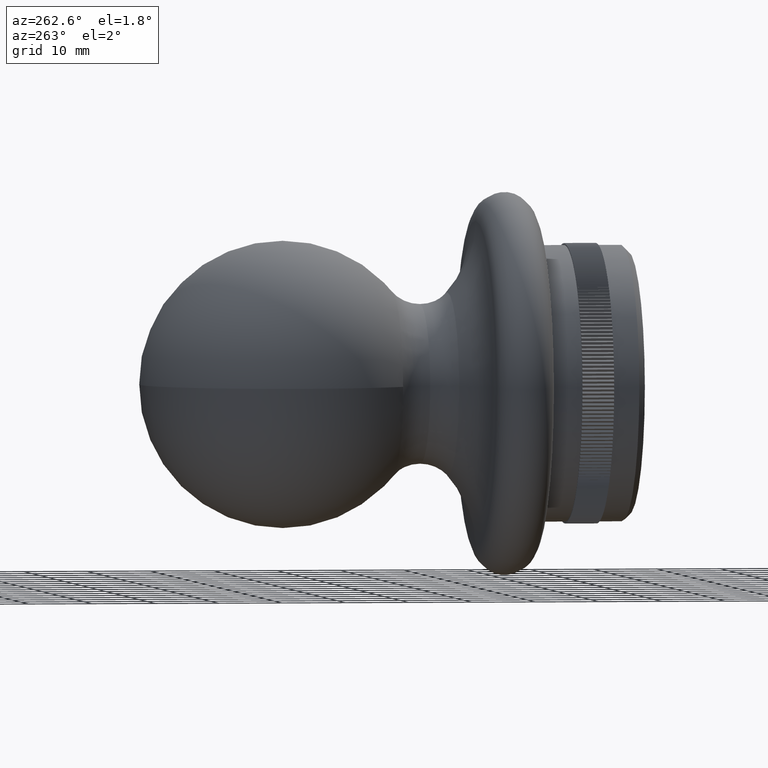
[diagram: clean part render]
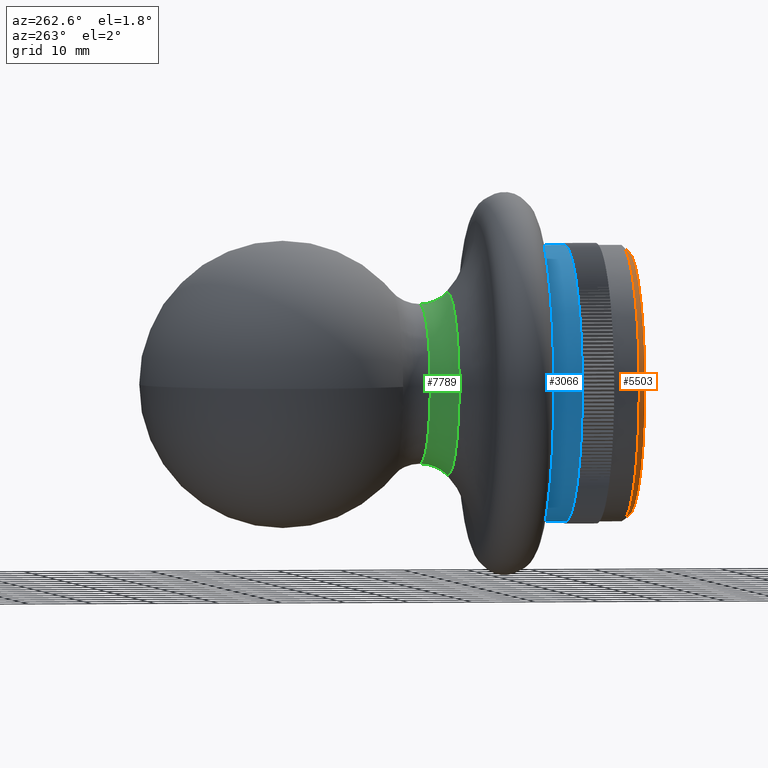
[diagram: same view with three faces highlighted in distinct colors, each labeled with its STEP entity id]
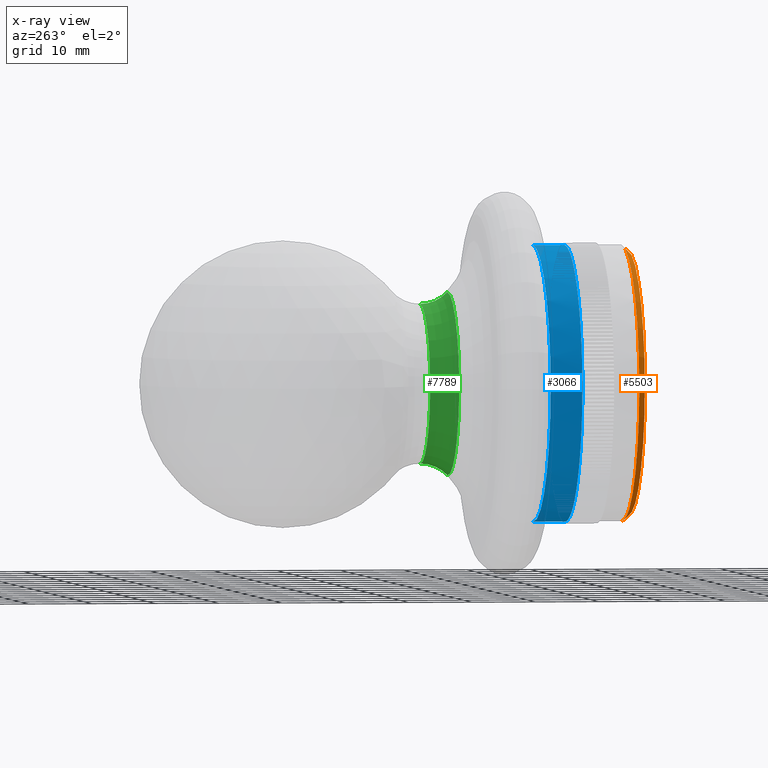
[diagram: x-ray of the same camera — body ghosted, the three highlighted faces saturated]
A machine part, auxiliary view with three faces highlighted in distinct colors.
The next image is the same camera in x-ray (body ghosted, the three faces saturated) — at least one of them is partly hidden behind the body in this view.
Their STEP definitions:

[orange] entity #5503 — the highlighted conical surface has half-angle 45 deg.
#293 = AXIS2_PLACEMENT_3D ( 'NONE', #33114, #12972, #7159 ) ;
#366 = DIRECTION ( 'NONE',  ( 8.659560562354950115E-17, 0.7071067811865463515, -0.7071067811865487940 ) ) ;
#1479 = ORIENTED_EDGE ( 'NONE', *, *, #7825, .F. ) ;
#2390 = CARTESIAN_POINT ( 'NONE',  ( 2.590127980196650908E-15, -15.00000000000000000, -20.64999999999997371 ) ) ;
#2635 = CIRCLE ( 'NONE', #36999, 20.64999999999997371 ) ;
#4604 = CARTESIAN_POINT ( 'NONE',  ( 0.000000000000000000, -15.00000000000000000, 0.000000000000000000 ) ) ;
#5503 = ADVANCED_FACE ( 'NONE', ( #25485 ), #9280, .T. ) ;
#6201 = DIRECTION ( 'NONE',  ( 0.000000000000000000, 0.7071067811865463515, 0.7071067811865487940 ) ) ;
#7159 = DIRECTION ( 'NONE',  ( 0.000000000000000000, 0.000000000000000000, -1.000000000000000000 ) ) ;
#7825 = EDGE_CURVE ( 'NONE', #25375, #34834, #29073, .T. ) ;
#7855 = ORIENTED_EDGE ( 'NONE', *, *, #30498, .F. ) ;
#9280 = CONICAL_SURFACE ( 'NONE', #18790, 20.64999999999997371, 0.7853981633974500554 ) ;
#10033 = VERTEX_POINT ( 'NONE', #13889 ) ;
#10874 = DIRECTION ( 'NONE',  ( 0.000000000000000000, 0.000000000000000000, -1.000000000000000000 ) ) ;
#11050 = DIRECTION ( 'NONE',  ( 0.000000000000000000, 0.000000000000000000, 1.000000000000000000 ) ) ;
#12972 = DIRECTION ( 'NONE',  ( 0.000000000000000000, 1.000000000000000000, 0.000000000000000000 ) ) ;
#13889 = CARTESIAN_POINT ( 'NONE',  ( 0.000000000000000000, -15.00000000000000000, 20.64999999999997371 ) ) ;
#15219 = LINE ( 'NONE', #18360, #24490 ) ;
#18360 = CARTESIAN_POINT ( 'NONE',  ( 0.000000000000000000, -15.00000000000000000, 20.64999999999997371 ) ) ;
#18790 = AXIS2_PLACEMENT_3D ( 'NONE', #28966, #28698, #11050 ) ;
#18945 = EDGE_CURVE ( 'NONE', #10033, #37822, #2635, .T. ) ;
#20266 = ORIENTED_EDGE ( 'NONE', *, *, #25193, .T. ) ;
#24490 = VECTOR ( 'NONE', #6201, 1000.000000000000000 ) ;
#25193 = EDGE_CURVE ( 'NONE', #10033, #34834, #15219, .T. ) ;
#25375 = VERTEX_POINT ( 'NONE', #30802 ) ;
#25485 = FACE_OUTER_BOUND ( 'NONE', #34909, .T. ) ;
#26620 = CARTESIAN_POINT ( 'NONE',  ( 2.528895640239281362E-15, -15.00000000000000000, -20.64999999999997371 ) ) ;
#28647 = DIRECTION ( 'NONE',  ( 0.000000000000000000, -1.000000000000000000, 0.000000000000000000 ) ) ;
#28698 = DIRECTION ( 'NONE',  ( 0.000000000000000000, 1.000000000000000000, 0.000000000000000000 ) ) ;
#28966 = CARTESIAN_POINT ( 'NONE',  ( 0.000000000000000000, -15.00000000000000000, 0.000000000000000000 ) ) ;
#29073 = CIRCLE ( 'NONE', #293, 21.65000000000000213 ) ;
#29512 = ORIENTED_EDGE ( 'NONE', *, *, #18945, .F. ) ;
#30430 = LINE ( 'NONE', #26620, #35056 ) ;
#30498 = EDGE_CURVE ( 'NONE', #37822, #25375, #30430, .T. ) ;
#30802 = CARTESIAN_POINT ( 'NONE',  ( 2.651360320154019665E-15, -13.99999999999997513, -21.65000000000000213 ) ) ;
#33114 = CARTESIAN_POINT ( 'NONE',  ( 0.000000000000000000, -13.99999999999997513, 0.000000000000000000 ) ) ;
#34834 = VERTEX_POINT ( 'NONE', #37118 ) ;
#34909 = EDGE_LOOP ( 'NONE', ( #7855, #29512, #20266, #1479 ) ) ;
#35056 = VECTOR ( 'NONE', #366, 1000.000000000000000 ) ;
#36999 = AXIS2_PLACEMENT_3D ( 'NONE', #4604, #28647, #10874 ) ;
#37118 = CARTESIAN_POINT ( 'NONE',  ( 0.000000000000000000, -13.99999999999997513, 21.65000000000000213 ) ) ;
#37822 = VERTEX_POINT ( 'NONE', #2390 ) ;

[blue] entity #3066 — the highlighted cylindrical surface (partial cylindrical patch) has radius 21.65 mm, axis along (-0, 1, -0).
#25 = DIRECTION ( 'NONE',  ( -1.000000000000000000, -1.201886934856910198E-16, 0.000000000000000000 ) ) ;
#189 = VERTEX_POINT ( 'NONE', #16134 ) ;
#274 = DIRECTION ( 'NONE',  ( -1.301042606982605567E-16, 1.000000000000000000, -0.000000000000000000 ) ) ;
#278 = DIRECTION ( 'NONE',  ( -1.000000000000000000, -1.201886934856910198E-16, 0.000000000000000000 ) ) ;
#298 = ORIENTED_EDGE ( 'NONE', *, *, #29101, .T. ) ;
#318 = CIRCLE ( 'NONE', #29639, 21.65000000000000213 ) ;
#342 = EDGE_CURVE ( 'NONE', #17763, #9303, #9407, .T. ) ;
#364 = VERTEX_POINT ( 'NONE', #6310 ) ;
#463 = VERTEX_POINT ( 'NONE', #1277 ) ;
#465 = VERTEX_POINT ( 'NONE', #36624 ) ;
#564 = DIRECTION ( 'NONE',  ( -1.000000000000000000, -1.201886934856910198E-16, 0.000000000000000000 ) ) ;
#584 = CIRCLE ( 'NONE', #25618, 21.65000000000000213 ) ;
#627 = CARTESIAN_POINT ( 'NONE',  ( -17.87146656924408461, -4.999999999999998224, 12.22019568846551607 ) ) ;
#647 = DIRECTION ( 'NONE',  ( -1.301042606982605567E-16, 1.000000000000000000, -0.000000000000000000 ) ) ;
#809 = ORIENTED_EDGE ( 'NONE', *, *, #26916, .T. ) ;
#828 = CARTESIAN_POINT ( 'NONE',  ( 0.000000000000000000, -4.999999999999997335, 0.000000000000000000 ) ) ;
#932 = CARTESIAN_POINT ( 'NONE',  ( -6.099509855616824794, -4.999999999999998224, -20.77302287875390974 ) ) ;
#939 = VERTEX_POINT ( 'NONE', #14833 ) ;
#1162 = CARTESIAN_POINT ( 'NONE',  ( 0.000000000000000000, -4.999999999999997335, 0.000000000000000000 ) ) ;
#1239 = DIRECTION ( 'NONE',  ( -1.000000000000000000, -1.201886934856910198E-16, 0.000000000000000000 ) ) ;
#1277 = CARTESIAN_POINT ( 'NONE',  ( -9.552436841915632471, -4.999999999999998224, -19.42867598116797012 ) ) ;
#1313 = CARTESIAN_POINT ( 'NONE',  ( -10.10334754783585431, -4.999999999999998224, 19.14797295610267369 ) ) ;
#1335 = DIRECTION ( 'NONE',  ( -1.000000000000000000, -1.201886934856910198E-16, 0.000000000000000000 ) ) ;
#1395 = CARTESIAN_POINT ( 'NONE',  ( -3.081116248616629250, -4.999999999999998224, 21.42963421672219582 ) ) ;
#1464 = CIRCLE ( 'NONE', #2455, 21.65000000000000213 ) ;
#1556 = DIRECTION ( 'NONE',  ( -1.301042606982605567E-16, 1.000000000000000000, -0.000000000000000000 ) ) ;
#1563 = DIRECTION ( 'NONE',  ( -1.301042606982605567E-16, 1.000000000000000000, -0.000000000000000000 ) ) ;
#1588 = DIRECTION ( 'NONE',  ( -1.000000000000000000, -1.201886934856910198E-16, 0.000000000000000000 ) ) ;
#1633 = ORIENTED_EDGE ( 'NONE', *, *, #33592, .T. ) ;
#1655 = VERTEX_POINT ( 'NONE', #18405 ) ;
#1671 = CARTESIAN_POINT ( 'NONE',  ( -21.08735800180150477, -4.999999999999998224, -4.903655014767879017 ) ) ;
#1718 = AXIS2_PLACEMENT_3D ( 'NONE', #21589, #21334, #24569 ) ;
#1739 = CIRCLE ( 'NONE', #33226, 21.65000000000000213 ) ;
#1779 = EDGE_CURVE ( 'NONE', #20237, #463, #7179, .T. ) ;
#1805 = ORIENTED_EDGE ( 'NONE', *, *, #5285, .T. ) ;
#1862 = CARTESIAN_POINT ( 'NONE',  ( -13.70471962496195850, -4.999999999999998224, -16.76016587033620908 ) ) ;
#1910 = CIRCLE ( 'NONE', #31137, 21.65000000000000213 ) ;
#1939 = ORIENTED_EDGE ( 'NONE', *, *, #33218, .T. ) ;
#1987 = EDGE_CURVE ( 'NONE', #33273, #4653, #27581, .T. ) ;
#2014 = VERTEX_POINT ( 'NONE', #37703 ) ;
#2015 = CARTESIAN_POINT ( 'NONE',  ( -18.21313898579501966, -4.999999999999998224, -11.70487369791377574 ) ) ;
#2050 = DIRECTION ( 'NONE',  ( -1.301042606982605567E-16, 1.000000000000000000, -0.000000000000000000 ) ) ;
#2109 = VERTEX_POINT ( 'NONE', #11236 ) ;
#2120 = DIRECTION ( 'NONE',  ( -1.000000000000000000, -1.201886934856910198E-16, 0.000000000000000000 ) ) ;
#2169 = AXIS2_PLACEMENT_3D ( 'NONE', #20524, #32344, #14532 ) ;
#2244 = VERTEX_POINT ( 'NONE', #14972 ) ;
#2258 = CARTESIAN_POINT ( 'NONE',  ( 0.000000000000000000, -4.999999999999997335, 0.000000000000000000 ) ) ;
#2340 = AXIS2_PLACEMENT_3D ( 'NONE', #9524, #24684, #27419 ) ;
#2374 = EDGE_CURVE ( 'NONE', #11739, #19230, #8087, .T. ) ;
#2377 = CARTESIAN_POINT ( 'NONE',  ( 0.000000000000000000, -4.999999999999997335, 0.000000000000000000 ) ) ;
#2381 = VERTEX_POINT ( 'NONE', #4269 ) ;
#2447 = DIRECTION ( 'NONE',  ( -1.301042606982605567E-16, 1.000000000000000000, -0.000000000000000000 ) ) ;
#2455 = AXIS2_PLACEMENT_3D ( 'NONE', #7971, #28329, #25734 ) ;
#2457 = EDGE_CURVE ( 'NONE', #3333, #14037, #10373, .T. ) ;
#2476 = ORIENTED_EDGE ( 'NONE', *, *, #31082, .T. ) ;
#2633 = EDGE_CURVE ( 'NONE', #30462, #19974, #36816, .T. ) ;
#2731 = ORIENTED_EDGE ( 'NONE', *, *, #34114, .T. ) ;
#2761 = CIRCLE ( 'NONE', #32904, 21.65000000000000213 ) ;
#2839 = AXIS2_PLACEMENT_3D ( 'NONE', #7675, #25924, #34386 ) ;
#2848 = AXIS2_PLACEMENT_3D ( 'NONE', #7196, #19508, #25460 ) ;
#2892 = DIRECTION ( 'NONE',  ( -1.301042606982605567E-16, 1.000000000000000000, -0.000000000000000000 ) ) ;
#2896 = ORIENTED_EDGE ( 'NONE', *, *, #38105, .T. ) ;
#2915 = CARTESIAN_POINT ( 'NONE',  ( -21.21878744765033531, -4.999999999999998224, 4.299483602880328270 ) ) ;
#2972 = DIRECTION ( 'NONE',  ( -1.000000000000000000, -1.201886934856910198E-16, 0.000000000000000000 ) ) ;
#3066 = ADVANCED_FACE ( 'NONE', ( #32175 ), #20537, .T. ) ;
#3123 = DIRECTION ( 'NONE',  ( -1.301042606982605567E-16, 1.000000000000000000, -0.000000000000000000 ) ) ;
#3128 = AXIS2_PLACEMENT_3D ( 'NONE', #25505, #34211, #1335 ) ;
#3131 = AXIS2_PLACEMENT_3D ( 'NONE', #37543, #31981, #7983 ) ;
#3136 = AXIS2_PLACEMENT_3D ( 'NONE', #37735, #28652, #14230 ) ;
#3138 = DIRECTION ( 'NONE',  ( -1.000000000000000000, -1.201886934856910198E-16, 0.000000000000000000 ) ) ;
#3321 = DIRECTION ( 'NONE',  ( -1.301042606982605567E-16, 1.000000000000000000, -0.000000000000000000 ) ) ;
#3333 = VERTEX_POINT ( 'NONE', #34666 ) ;
#3426 = DIRECTION ( 'NONE',  ( -1.301042606982605567E-16, 1.000000000000000000, -0.000000000000000000 ) ) ;
#3431 = CIRCLE ( 'NONE', #34551, 21.65000000000000213 ) ;
#3469 = EDGE_CURVE ( 'NONE', #10861, #8684, #20501, .T. ) ;
#3511 = DIRECTION ( 'NONE',  ( -1.000000000000000000, -1.201886934856910198E-16, 0.000000000000000000 ) ) ;
#3558 = CARTESIAN_POINT ( 'NONE',  ( 0.000000000000000000, -4.999999999999997335, 0.000000000000000000 ) ) ;
#3570 = ORIENTED_EDGE ( 'NONE', *, *, #3469, .T. ) ;
#3576 = CARTESIAN_POINT ( 'NONE',  ( 0.000000000000000000, -4.999999999999997335, 0.000000000000000000 ) ) ;
#3591 = CIRCLE ( 'NONE', #34195, 21.65000000000000213 ) ;
#3629 = EDGE_CURVE ( 'NONE', #7368, #4721, #20070, .T. ) ;
#3645 = AXIS2_PLACEMENT_3D ( 'NONE', #4855, #16704, #16572 ) ;
#3787 = CARTESIAN_POINT ( 'NONE',  ( -20.93872940429735152, -4.999999999999998224, -5.503826935289075628 ) ) ;
#3797 = DIRECTION ( 'NONE',  ( -1.301042606982605567E-16, 1.000000000000000000, -0.000000000000000000 ) ) ;
#3822 = AXIS2_PLACEMENT_3D ( 'NONE', #3558, #21514, #15151 ) ;
#3895 = CARTESIAN_POINT ( 'NONE',  ( -1.852698933566883754, -4.999999999999998224, 21.57058197317727277 ) ) ;
#3933 = CIRCLE ( 'NONE', #33353, 21.65000000000000213 ) ;
#3953 = CARTESIAN_POINT ( 'NONE',  ( 0.000000000000000000, -4.999999999999997335, 0.000000000000000000 ) ) ;
#3972 = DIRECTION ( 'NONE',  ( -1.301042606982605567E-16, 1.000000000000000000, -0.000000000000000000 ) ) ;
#3978 = AXIS2_PLACEMENT_3D ( 'NONE', #4750, #19215, #22178 ) ;
#4020 = DIRECTION ( 'NONE',  ( -1.000000000000000000, -1.201886934856910198E-16, 0.000000000000000000 ) ) ;
#4222 = ORIENTED_EDGE ( 'NONE', *, *, #31998, .T. ) ;
#4269 = CARTESIAN_POINT ( 'NONE',  ( -16.76016587033606342, -4.999999999999998224, -13.70471962496212903 ) ) ;
#4291 = DIRECTION ( 'NONE',  ( -1.000000000000000000, -1.201886934856910198E-16, 0.000000000000000000 ) ) ;
#4387 = CARTESIAN_POINT ( 'NONE',  ( -13.22052659410714703, -4.999999999999998224, -17.14468362421733616 ) ) ;
#4458 = DIRECTION ( 'NONE',  ( -1.000000000000000000, -1.201886934856910198E-16, 0.000000000000000000 ) ) ;
#4512 = DIRECTION ( 'NONE',  ( -1.000000000000000000, -1.201886934856910198E-16, 0.000000000000000000 ) ) ;
#4529 = EDGE_CURVE ( 'NONE', #28610, #35331, #23698, .T. ) ;
#4539 = ORIENTED_EDGE ( 'NONE', *, *, #14897, .T. ) ;
#4589 = DIRECTION ( 'NONE',  ( -1.000000000000000000, -1.201886934856910198E-16, 0.000000000000000000 ) ) ;
#4608 = CARTESIAN_POINT ( 'NONE',  ( -19.69353269942528328, -4.999999999999998224, -8.993735031490924570 ) ) ;
#4635 = VERTEX_POINT ( 'NONE', #25913 ) ;
#4653 = VERTEX_POINT ( 'NONE', #2015 ) ;
#4658 = AXIS2_PLACEMENT_3D ( 'NONE', #10490, #16706, #28261 ) ;
#4663 = ORIENTED_EDGE ( 'NONE', *, *, #24294, .T. ) ;
#4713 = CARTESIAN_POINT ( 'NONE',  ( 0.000000000000000000, -4.999999999999997335, 0.000000000000000000 ) ) ;
#4720 = DIRECTION ( 'NONE',  ( -1.000000000000000000, -1.201886934856910198E-16, 0.000000000000000000 ) ) ;
#4721 = VERTEX_POINT ( 'NONE', #31656 ) ;
#4730 = DIRECTION ( 'NONE',  ( -1.301042606982605567E-16, 1.000000000000000000, -0.000000000000000000 ) ) ;
#4750 = CARTESIAN_POINT ( 'NONE',  ( 0.000000000000000000, -4.999999999999997335, 0.000000000000000000 ) ) ;
#4761 = DIRECTION ( 'NONE',  ( -1.000000000000000000, -1.201886934856910198E-16, 0.000000000000000000 ) ) ;
#4799 = VERTEX_POINT ( 'NONE', #17232 ) ;
#4855 = CARTESIAN_POINT ( 'NONE',  ( 0.000000000000000000, -4.999999999999997335, 0.000000000000000000 ) ) ;
#4931 = AXIS2_PLACEMENT_3D ( 'NONE', #8646, #3123, #26785 ) ;
#4993 = VERTEX_POINT ( 'NONE', #30321 ) ;
#5041 = CIRCLE ( 'NONE', #36470, 21.65000000000000213 ) ;
#5056 = ORIENTED_EDGE ( 'NONE', *, *, #20559, .T. ) ;
#5091 = CARTESIAN_POINT ( 'NONE',  ( -19.94232708993652992, -4.999999999999998224, 8.427697801771476094 ) ) ;
#5117 = DIRECTION ( 'NONE',  ( -1.301042606982605567E-16, 1.000000000000000000, -0.000000000000000000 ) ) ;
#5163 = DIRECTION ( 'NONE',  ( -1.301042606982605567E-16, 1.000000000000000000, -0.000000000000000000 ) ) ;
#5250 = CARTESIAN_POINT ( 'NONE',  ( 0.000000000000000000, -4.999999999999997335, 0.000000000000000000 ) ) ;
#5285 = EDGE_CURVE ( 'NONE', #32484, #29069, #26902, .T. ) ;
#5350 = EDGE_CURVE ( 'NONE', #29069, #32996, #8352, .T. ) ;
#5395 = DIRECTION ( 'NONE',  ( -1.000000000000000000, -1.201886934856910198E-16, 0.000000000000000000 ) ) ;
#5452 = DIRECTION ( 'NONE',  ( -1.000000000000000000, -1.201886934856910198E-16, 0.000000000000000000 ) ) ;
#5494 = DIRECTION ( 'NONE',  ( -1.000000000000000000, -1.201886934856910198E-16, 0.000000000000000000 ) ) ;
#5661 = DIRECTION ( 'NONE',  ( -1.301042606982605567E-16, 1.000000000000000000, -0.000000000000000000 ) ) ;
#5675 = VERTEX_POINT ( 'NONE', #37222 ) ;
#5678 = CIRCLE ( 'NONE', #8536, 21.65000000000000213 ) ;
#5726 = VERTEX_POINT ( 'NONE', #21026 ) ;
#5736 = CARTESIAN_POINT ( 'NONE',  ( -15.52590357303148494, -4.999999999999998224, -15.08869836138718235 ) ) ;
#5769 = AXIS2_PLACEMENT_3D ( 'NONE', #30049, #24331, #278 ) ;
#5843 = CIRCLE ( 'NONE', #4658, 21.65000000000000213 ) ;
#5848 = CARTESIAN_POINT ( 'NONE',  ( 0.000000000000000000, -4.999999999999997335, 0.000000000000000000 ) ) ;
#5873 = DIRECTION ( 'NONE',  ( -1.301042606982605567E-16, 1.000000000000000000, -0.000000000000000000 ) ) ;
#5966 = DIRECTION ( 'NONE',  ( -1.000000000000000000, -1.201886934856910198E-16, 0.000000000000000000 ) ) ;
#5992 = VERTEX_POINT ( 'NONE', #16989 ) ;
#6026 = AXIS2_PLACEMENT_3D ( 'NONE', #37919, #2447, #5395 ) ;
#6065 = CARTESIAN_POINT ( 'NONE',  ( 0.000000000000000000, -4.999999999999997335, 0.000000000000000000 ) ) ;
#6071 = CARTESIAN_POINT ( 'NONE',  ( 0.000000000000000000, -4.999999999999997335, 0.000000000000000000 ) ) ;
#6088 = VERTEX_POINT ( 'NONE', #5736 ) ;
#6099 = DIRECTION ( 'NONE',  ( -1.000000000000000000, -1.201886934856910198E-16, 0.000000000000000000 ) ) ;
#6101 = AXIS2_PLACEMENT_3D ( 'NONE', #11926, #3321, #15035 ) ;
#6200 = CARTESIAN_POINT ( 'NONE',  ( 0.000000000000000000, -4.999999999999997335, 0.000000000000000000 ) ) ;
#6217 = CARTESIAN_POINT ( 'NONE',  ( -21.65000000000000213, -4.999999999999998224, -7.422829603901386109E-14 ) ) ;
#6274 = EDGE_CURVE ( 'NONE', #33297, #30462, #13826, .T. ) ;
#6283 = CIRCLE ( 'NONE', #35060, 21.65000000000000213 ) ;
#6310 = CARTESIAN_POINT ( 'NONE',  ( -20.77302287875388842, -4.999999999999998224, 6.099509855616896736 ) ) ;
#6318 = DIRECTION ( 'NONE',  ( -1.301042606982605567E-16, 1.000000000000000000, -0.000000000000000000 ) ) ;
#6352 = ORIENTED_EDGE ( 'NONE', *, *, #12890, .T. ) ;
#6429 = DIRECTION ( 'NONE',  ( -1.000000000000000000, -1.201886934856910198E-16, 0.000000000000000000 ) ) ;
#6460 = CARTESIAN_POINT ( 'NONE',  ( 0.000000000000000000, -4.999999999999997335, 0.000000000000000000 ) ) ;
#6494 = ORIENTED_EDGE ( 'NONE', *, *, #29832, .T. ) ;
#6499 = AXIS2_PLACEMENT_3D ( 'NONE', #19971, #26450, #32434 ) ;
#6650 = EDGE_CURVE ( 'NONE', #37530, #2244, #34247, .T. ) ;
#6739 = ORIENTED_EDGE ( 'NONE', *, *, #6274, .T. ) ;
#6740 = CARTESIAN_POINT ( 'NONE',  ( -16.76016587033616645, -4.999999999999998224, 13.70471962496201357 ) ) ;
#6742 = CIRCLE ( 'NONE', #28273, 21.65000000000000213 ) ;
#6765 = AXIS2_PLACEMENT_3D ( 'NONE', #16228, #28041, #34146 ) ;
#6768 = VERTEX_POINT ( 'NONE', #11190 ) ;
#6832 = CARTESIAN_POINT ( 'NONE',  ( -15.08869836138712905, -4.999999999999998224, 15.52590357303153823 ) ) ;
#6852 = VERTEX_POINT ( 'NONE', #2915 ) ;
#6861 = EDGE_CURVE ( 'NONE', #35285, #1655, #11494, .T. ) ;
#6876 = EDGE_CURVE ( 'NONE', #8457, #6768, #19846, .T. ) ;
#6885 = CARTESIAN_POINT ( 'NONE',  ( 0.000000000000000000, -4.999999999999997335, 0.000000000000000000 ) ) ;
#6911 = CARTESIAN_POINT ( 'NONE',  ( 0.000000000000000000, -4.999999999999997335, 0.000000000000000000 ) ) ;
#6913 = EDGE_CURVE ( 'NONE', #23093, #10861, #5041, .T. ) ;
#6941 = CARTESIAN_POINT ( 'NONE',  ( -10.10334754783572286, -4.999999999999998224, -19.14797295610274475 ) ) ;
#6986 = DIRECTION ( 'NONE',  ( -1.301042606982605567E-16, 1.000000000000000000, -0.000000000000000000 ) ) ;
#6988 = CARTESIAN_POINT ( 'NONE',  ( 0.000000000000000000, -4.999999999999997335, 0.000000000000000000 ) ) ;
#7075 = CARTESIAN_POINT ( 'NONE',  ( -7.275469363113933774, -4.999999999999998224, -20.39093047279575899 ) ) ;
#7146 = CARTESIAN_POINT ( 'NONE',  ( 0.000000000000000000, -4.999999999999997335, 0.000000000000000000 ) ) ;
#7151 = AXIS2_PLACEMENT_3D ( 'NONE', #22829, #5117, #25809 ) ;
#7179 = CIRCLE ( 'NONE', #21676, 21.65000000000000213 ) ;
#7186 = ORIENTED_EDGE ( 'NONE', *, *, #18556, .T. ) ;
#7196 = CARTESIAN_POINT ( 'NONE',  ( 0.000000000000000000, -4.999999999999997335, 0.000000000000000000 ) ) ;
#7209 = VERTEX_POINT ( 'NONE', #19413 ) ;
#7219 = AXIS2_PLACEMENT_3D ( 'NONE', #24755, #27858, #15529 ) ;
#7251 = CARTESIAN_POINT ( 'NONE',  ( -15.52590357303158797, -4.999999999999998224, 15.08869836138707754 ) ) ;
#7280 = EDGE_CURVE ( 'NONE', #16578, #5992, #36078, .T. ) ;
#7326 = CIRCLE ( 'NONE', #2839, 21.65000000000000213 ) ;
#7333 = CARTESIAN_POINT ( 'NONE',  ( 0.000000000000000000, -4.999999999999997335, 0.000000000000000000 ) ) ;
#7368 = VERTEX_POINT ( 'NONE', #7075 ) ;
#7405 = CIRCLE ( 'NONE', #1718, 21.65000000000000213 ) ;
#7406 = CIRCLE ( 'NONE', #17995, 21.65000000000000213 ) ;
#7432 = CIRCLE ( 'NONE', #10329, 21.65000000000000213 ) ;
#7527 = CARTESIAN_POINT ( 'NONE',  ( 1.734723475976807094E-15, -4.999999999999997335, 21.65000000000000213 ) ) ;
#7554 = ORIENTED_EDGE ( 'NONE', *, *, #34866, .T. ) ;
#7558 = ORIENTED_EDGE ( 'NONE', *, *, #9102, .T. ) ;
#7675 = CARTESIAN_POINT ( 'NONE',  ( 0.000000000000000000, -4.999999999999997335, 0.000000000000000000 ) ) ;
#7683 = CIRCLE ( 'NONE', #28566, 21.65000000000000213 ) ;
#7685 = CARTESIAN_POINT ( 'NONE',  ( -6.099509855616965126, -4.999999999999998224, 20.77302287875386710 ) ) ;
#7780 = CIRCLE ( 'NONE', #28404, 21.65000000000000213 ) ;
#7903 = CARTESIAN_POINT ( 'NONE',  ( 0.000000000000000000, -4.999999999999997335, 0.000000000000000000 ) ) ;
#7929 = VERTEX_POINT ( 'NONE', #28281 ) ;
#7971 = CARTESIAN_POINT ( 'NONE',  ( 0.000000000000000000, -4.999999999999997335, 0.000000000000000000 ) ) ;
#7983 = DIRECTION ( 'NONE',  ( -1.000000000000000000, -1.201886934856910198E-16, 0.000000000000000000 ) ) ;
#8019 = CARTESIAN_POINT ( 'NONE',  ( 0.000000000000000000, -4.999999999999997335, 0.000000000000000000 ) ) ;
#8087 = CIRCLE ( 'NONE', #9758, 21.65000000000000213 ) ;
#8135 = CIRCLE ( 'NONE', #24362, 21.65000000000000213 ) ;
#8139 = EDGE_CURVE ( 'NONE', #15854, #17680, #22047, .T. ) ;
#8151 = CARTESIAN_POINT ( 'NONE',  ( -4.903655014767662301, -4.999999999999998224, -21.08735800180155451 ) ) ;
#8257 = ORIENTED_EDGE ( 'NONE', *, *, #22111, .T. ) ;
#8280 = VERTEX_POINT ( 'NONE', #6740 ) ;
#8281 = CIRCLE ( 'NONE', #2340, 21.65000000000000213 ) ;
#8302 = EDGE_CURVE ( 'NONE', #2014, #32589, #27176, .T. ) ;
#8309 = EDGE_CURVE ( 'NONE', #11045, #26326, #8608, .T. ) ;
#8311 = AXIS2_PLACEMENT_3D ( 'NONE', #37080, #10216, #4589 ) ;
#8352 = CIRCLE ( 'NONE', #21281, 21.65000000000000213 ) ;
#8358 = CARTESIAN_POINT ( 'NONE',  ( -21.57058197317727632, -4.999999999999998224, 1.852698933566812256 ) ) ;
#8389 = DIRECTION ( 'NONE',  ( -1.000000000000000000, -1.201886934856910198E-16, 0.000000000000000000 ) ) ;
#8397 = CARTESIAN_POINT ( 'NONE',  ( -19.69353269942535078, -4.999999999999998224, 8.993735031490798448 ) ) ;
#8403 = CIRCLE ( 'NONE', #19952, 21.65000000000000213 ) ;
#8409 = VERTEX_POINT ( 'NONE', #37448 ) ;
#8457 = VERTEX_POINT ( 'NONE', #34730 ) ;
#8512 = ORIENTED_EDGE ( 'NONE', *, *, #8618, .T. ) ;
#8536 = AXIS2_PLACEMENT_3D ( 'NONE', #23258, #34821, #28855 ) ;
#8572 = EDGE_CURVE ( 'NONE', #26326, #15756, #7683, .T. ) ;
#8581 = ORIENTED_EDGE ( 'NONE', *, *, #21905, .T. ) ;
#8608 = CIRCLE ( 'NONE', #7219, 21.65000000000000213 ) ;
#8618 = EDGE_CURVE ( 'NONE', #24554, #5726, #11822, .T. ) ;
#8634 = CIRCLE ( 'NONE', #3131, 21.65000000000000213 ) ;
#8646 = CARTESIAN_POINT ( 'NONE',  ( 0.000000000000000000, -4.999999999999997335, 0.000000000000000000 ) ) ;
#8652 = DIRECTION ( 'NONE',  ( -1.000000000000000000, -1.201886934856910198E-16, 0.000000000000000000 ) ) ;
#8656 = CARTESIAN_POINT ( 'NONE',  ( 0.000000000000000000, -4.999999999999997335, 0.000000000000000000 ) ) ;
#8680 = CARTESIAN_POINT ( 'NONE',  ( 0.000000000000000000, 0.000000000000000000, 21.65000000000000213 ) ) ;
#8684 = VERTEX_POINT ( 'NONE', #17575 ) ;
#8687 = DIRECTION ( 'NONE',  ( -1.000000000000000000, -1.201886934856910198E-16, 0.000000000000000000 ) ) ;
#8724 = EDGE_CURVE ( 'NONE', #15756, #19185, #36935, .T. ) ;
#8749 = CARTESIAN_POINT ( 'NONE',  ( -10.64601781857721363, -4.999999999999998224, -18.85165256964324243 ) ) ;
#8763 = EDGE_CURVE ( 'NONE', #12595, #8409, #6283, .T. ) ;
#8770 = ORIENTED_EDGE ( 'NONE', *, *, #13166, .T. ) ;
#8794 = ORIENTED_EDGE ( 'NONE', *, *, #26860, .T. ) ;
#8817 = CIRCLE ( 'NONE', #25501, 21.65000000000000213 ) ;
#8887 = ORIENTED_EDGE ( 'NONE', *, *, #21960, .F. ) ;
#8896 = ORIENTED_EDGE ( 'NONE', *, *, #11979, .T. ) ;
#8911 = EDGE_CURVE ( 'NONE', #7929, #13747, #32252, .T. ) ;
#8957 = CARTESIAN_POINT ( 'NONE',  ( -21.61469110000084370, -4.999999999999998224, 1.235972755178855076 ) ) ;
#8971 = ORIENTED_EDGE ( 'NONE', *, *, #28163, .T. ) ;
#9024 = DIRECTION ( 'NONE',  ( -0.000000000000000000, 1.000000000000000000, -0.000000000000000000 ) ) ;
#9033 = DIRECTION ( 'NONE',  ( -1.000000000000000000, -1.201886934856910198E-16, 0.000000000000000000 ) ) ;
#9034 = CARTESIAN_POINT ( 'NONE',  ( 0.000000000000000000, -15.00000000000000000, 21.65000000000000213 ) ) ;
#9069 = CARTESIAN_POINT ( 'NONE',  ( 0.000000000000000000, -4.999999999999997335, 0.000000000000000000 ) ) ;
#9102 = EDGE_CURVE ( 'NONE', #11124, #2381, #8135, .T. ) ;
#9109 = ORIENTED_EDGE ( 'NONE', *, *, #12318, .T. ) ;
#9120 = VERTEX_POINT ( 'NONE', #11002 ) ;
#9144 = CIRCLE ( 'NONE', #35924, 21.65000000000000213 ) ;
#9256 = DIRECTION ( 'NONE',  ( -1.301042606982605567E-16, 1.000000000000000000, -0.000000000000000000 ) ) ;
#9267 = AXIS2_PLACEMENT_3D ( 'NONE', #28675, #22697, #10778 ) ;
#9285 = CARTESIAN_POINT ( 'NONE',  ( 0.000000000000000000, -4.999999999999997335, 0.000000000000000000 ) ) ;
#9303 = VERTEX_POINT ( 'NONE', #14721 ) ;
#9339 = VERTEX_POINT ( 'NONE', #3787 ) ;
#9394 = DIRECTION ( 'NONE',  ( -1.000000000000000000, -1.201886934856910198E-16, 0.000000000000000000 ) ) ;
#9407 = CIRCLE ( 'NONE', #32837, 21.65000000000000213 ) ;
#9512 = DIRECTION ( 'NONE',  ( -1.000000000000000000, -1.201886934856910198E-16, 0.000000000000000000 ) ) ;
#9524 = CARTESIAN_POINT ( 'NONE',  ( 0.000000000000000000, -4.999999999999997335, 0.000000000000000000 ) ) ;
#9561 = ORIENTED_EDGE ( 'NONE', *, *, #22928, .T. ) ;
#9611 = EDGE_CURVE ( 'NONE', #6852, #25907, #14083, .T. ) ;
#9643 = AXIS2_PLACEMENT_3D ( 'NONE', #3953, #18668, #36824 ) ;
#9711 = DIRECTION ( 'NONE',  ( -1.000000000000000000, -1.201886934856910198E-16, 0.000000000000000000 ) ) ;
#9758 = AXIS2_PLACEMENT_3D ( 'NONE', #36517, #21701, #4020 ) ;
#9794 = DIRECTION ( 'NONE',  ( -1.000000000000000000, -1.201886934856910198E-16, 0.000000000000000000 ) ) ;
#9800 = CIRCLE ( 'NONE', #38065, 21.65000000000000213 ) ;
#9811 = EDGE_CURVE ( 'NONE', #4993, #6852, #8281, .T. ) ;
#9909 = VERTEX_POINT ( 'NONE', #13372 ) ;
#9937 = EDGE_CURVE ( 'NONE', #16820, #939, #18078, .T. ) ;
#9978 = CARTESIAN_POINT ( 'NONE',  ( -18.85165256964313585, -4.999999999999998224, -10.64601781857740903 ) ) ;
#10077 = DIRECTION ( 'NONE',  ( -1.000000000000000000, -1.201886934856910198E-16, 0.000000000000000000 ) ) ;
#10105 = CARTESIAN_POINT ( 'NONE',  ( 0.000000000000000000, -4.999999999999997335, 0.000000000000000000 ) ) ;
#10209 = EDGE_CURVE ( 'NONE', #463, #25299, #33120, .T. ) ;
#10212 = DIRECTION ( 'NONE',  ( -1.301042606982605567E-16, 1.000000000000000000, -0.000000000000000000 ) ) ;
#10216 = DIRECTION ( 'NONE',  ( -1.301042606982605567E-16, 1.000000000000000000, -0.000000000000000000 ) ) ;
#10234 = DIRECTION ( 'NONE',  ( -1.301042606982605567E-16, 1.000000000000000000, -0.000000000000000000 ) ) ;
#10329 = AXIS2_PLACEMENT_3D ( 'NONE', #37531, #5163, #34815 ) ;
#10347 = CIRCLE ( 'NONE', #5769, 21.65000000000000213 ) ;
#10373 = CIRCLE ( 'NONE', #24409, 21.65000000000000213 ) ;
#10375 = ORIENTED_EDGE ( 'NONE', *, *, #26812, .T. ) ;
#10382 = ORIENTED_EDGE ( 'NONE', *, *, #21512, .T. ) ;
#10407 = VERTEX_POINT ( 'NONE', #21770 ) ;
#10427 = AXIS2_PLACEMENT_3D ( 'NONE', #30024, #38306, #14550 ) ;
#10439 = AXIS2_PLACEMENT_3D ( 'NONE', #33988, #10234, #27762 ) ;
#10443 = EDGE_CURVE ( 'NONE', #35331, #36806, #3933, .T. ) ;
#10490 = CARTESIAN_POINT ( 'NONE',  ( 0.000000000000000000, -4.999999999999997335, 0.000000000000000000 ) ) ;
#10507 = ORIENTED_EDGE ( 'NONE', *, *, #14332, .T. ) ;
#10526 = CIRCLE ( 'NONE', #2169, 21.65000000000000213 ) ;
#10554 = ORIENTED_EDGE ( 'NONE', *, *, #36386, .T. ) ;
#10555 = CARTESIAN_POINT ( 'NONE',  ( 0.000000000000000000, -4.999999999999997335, 0.000000000000000000 ) ) ;
#10626 = ORIENTED_EDGE ( 'NONE', *, *, #23446, .T. ) ;
#10648 = CIRCLE ( 'NONE', #32445, 21.65000000000000213 ) ;
#10778 = DIRECTION ( 'NONE',  ( -1.000000000000000000, -1.201886934856910198E-16, 0.000000000000000000 ) ) ;
#10861 = VERTEX_POINT ( 'NONE', #21358 ) ;
#10901 = AXIS2_PLACEMENT_3D ( 'NONE', #6065, #274, #26286 ) ;
#10910 = CIRCLE ( 'NONE', #11063, 21.65000000000000213 ) ;
#11002 = CARTESIAN_POINT ( 'NONE',  ( -17.14468362421728287, -4.999999999999998224, 13.22052659410720388 ) ) ;
#11024 = CARTESIAN_POINT ( 'NONE',  ( -20.17485623242796677, -4.999999999999998224, 7.854786820841324513 ) ) ;
#11045 = VERTEX_POINT ( 'NONE', #8749 ) ;
#11063 = AXIS2_PLACEMENT_3D ( 'NONE', #25668, #4730, #19322 ) ;
#11124 = VERTEX_POINT ( 'NONE', #20417 ) ;
#11190 = CARTESIAN_POINT ( 'NONE',  ( -3.691805470496312136, -4.999999999999998224, 21.33291054610255699 ) ) ;
#11236 = CARTESIAN_POINT ( 'NONE',  ( -6.690217928217627730, -4.999999999999998224, 20.59037357779007493 ) ) ;
#11368 = CARTESIAN_POINT ( 'NONE',  ( -21.42963421672218516, -4.999999999999998224, -3.081116248616704745 ) ) ;
#11392 = DIRECTION ( 'NONE',  ( -1.000000000000000000, -1.201886934856910198E-16, 0.000000000000000000 ) ) ;
#11396 = DIRECTION ( 'NONE',  ( -1.301042606982605567E-16, 1.000000000000000000, -0.000000000000000000 ) ) ;
#11417 = EDGE_CURVE ( 'NONE', #6768, #18391, #5678, .T. ) ;
#11494 = CIRCLE ( 'NONE', #14560, 21.65000000000000213 ) ;
#11521 = CIRCLE ( 'NONE', #6026, 21.65000000000000213 ) ;
#11523 = EDGE_CURVE ( 'NONE', #32589, #3333, #21418, .T. ) ;
#11580 = CIRCLE ( 'NONE', #37842, 21.65000000000000213 ) ;
#11601 = DIRECTION ( 'NONE',  ( -1.301042606982605567E-16, 1.000000000000000000, -0.000000000000000000 ) ) ;
#11628 = CIRCLE ( 'NONE', #26922, 21.65000000000000213 ) ;
#11714 = DIRECTION ( 'NONE',  ( -1.000000000000000000, -1.201886934856910198E-16, 0.000000000000000000 ) ) ;
#11739 = VERTEX_POINT ( 'NONE', #12850 ) ;
#11742 = DIRECTION ( 'NONE',  ( -1.301042606982605567E-16, 1.000000000000000000, -0.000000000000000000 ) ) ;
#11780 = DIRECTION ( 'NONE',  ( -1.301042606982605567E-16, 1.000000000000000000, -0.000000000000000000 ) ) ;
#11792 = AXIS2_PLACEMENT_3D ( 'NONE', #14681, #35476, #20797 ) ;
#11822 = CIRCLE ( 'NONE', #13897, 21.65000000000000213 ) ;
#11867 = VERTEX_POINT ( 'NONE', #7685 ) ;
#11910 = ORIENTED_EDGE ( 'NONE', *, *, #29476, .T. ) ;
#11926 = CARTESIAN_POINT ( 'NONE',  ( 0.000000000000000000, -4.999999999999997335, 0.000000000000000000 ) ) ;
#11972 = AXIS2_PLACEMENT_3D ( 'NONE', #15007, #3426, #6099 ) ;
#11979 = EDGE_CURVE ( 'NONE', #2109, #11867, #11628, .T. ) ;
#11987 = CARTESIAN_POINT ( 'NONE',  ( 0.000000000000000000, -4.999999999999997335, 0.000000000000000000 ) ) ;
#12031 = DIRECTION ( 'NONE',  ( -1.301042606982605567E-16, 1.000000000000000000, -0.000000000000000000 ) ) ;
#12097 = CARTESIAN_POINT ( 'NONE',  ( 0.000000000000000000, -4.999999999999997335, 0.000000000000000000 ) ) ;
#12126 = DIRECTION ( 'NONE',  ( -1.301042606982605567E-16, 1.000000000000000000, -0.000000000000000000 ) ) ;
#12280 = CARTESIAN_POINT ( 'NONE',  ( 0.000000000000000000, -4.999999999999997335, 0.000000000000000000 ) ) ;
#12311 = AXIS2_PLACEMENT_3D ( 'NONE', #9069, #12031, #8687 ) ;
#12318 = EDGE_CURVE ( 'NONE', #21004, #9909, #35761, .T. ) ;
#12399 = CARTESIAN_POINT ( 'NONE',  ( -8.427697801771543595, -4.999999999999998224, 19.94232708993649794 ) ) ;
#12472 = CARTESIAN_POINT ( 'NONE',  ( 0.000000000000000000, -4.999999999999997335, 0.000000000000000000 ) ) ;
#12488 = DIRECTION ( 'NONE',  ( -1.301042606982605567E-16, 1.000000000000000000, -0.000000000000000000 ) ) ;
#12544 = ORIENTED_EDGE ( 'NONE', *, *, #15477, .T. ) ;
#12580 = CARTESIAN_POINT ( 'NONE',  ( 0.000000000000000000, -4.999999999999997335, 0.000000000000000000 ) ) ;
#12595 = VERTEX_POINT ( 'NONE', #35255 ) ;
#12616 = AXIS2_PLACEMENT_3D ( 'NONE', #17130, #20134, #13754 ) ;
#12708 = CIRCLE ( 'NONE', #26285, 21.65000000000000213 ) ;
#12717 = CIRCLE ( 'NONE', #21076, 21.65000000000000213 ) ;
#12733 = DIRECTION ( 'NONE',  ( -1.000000000000000000, -1.201886934856910198E-16, 0.000000000000000000 ) ) ;
#12800 = DIRECTION ( 'NONE',  ( -1.301042606982605567E-16, 1.000000000000000000, -0.000000000000000000 ) ) ;
#12819 = AXIS2_PLACEMENT_3D ( 'NONE', #30957, #16011, #27715 ) ;
#12844 = VERTEX_POINT ( 'NONE', #21712 ) ;
#12850 = CARTESIAN_POINT ( 'NONE',  ( -14.63918659093254604, -4.999999999999998224, 15.95044563502414547 ) ) ;
#12882 = VERTEX_POINT ( 'NONE', #19642 ) ;
#12887 = VERTEX_POINT ( 'NONE', #31442 ) ;
#12890 = EDGE_CURVE ( 'NONE', #36859, #17763, #10648, .T. ) ;
#12937 = AXIS2_PLACEMENT_3D ( 'NONE', #29377, #11601, #23528 ) ;
#12947 = CIRCLE ( 'NONE', #27665, 21.65000000000000213 ) ;
#12975 = ORIENTED_EDGE ( 'NONE', *, *, #35385, .T. ) ;
#12986 = AXIS2_PLACEMENT_3D ( 'NONE', #23889, #5661, #11714 ) ;
#13025 = DIRECTION ( 'NONE',  ( -1.000000000000000000, -1.201886934856910198E-16, 0.000000000000000000 ) ) ;
#13026 = CARTESIAN_POINT ( 'NONE',  ( 0.000000000000000000, -4.999999999999997335, 0.000000000000000000 ) ) ;
#13058 = EDGE_CURVE ( 'NONE', #939, #9339, #25955, .T. ) ;
#13151 = CARTESIAN_POINT ( 'NONE',  ( 0.000000000000000000, -4.999999999999997335, 0.000000000000000000 ) ) ;
#13166 = EDGE_CURVE ( 'NONE', #465, #32484, #7406, .T. ) ;
#13224 = VERTEX_POINT ( 'NONE', #33633 ) ;
#13372 = CARTESIAN_POINT ( 'NONE',  ( -7.275469363114078547, -4.999999999999998224, 20.39093047279570925 ) ) ;
#13527 = CIRCLE ( 'NONE', #10439, 21.65000000000000213 ) ;
#13538 = DIRECTION ( 'NONE',  ( -1.000000000000000000, -1.201886934856910198E-16, 0.000000000000000000 ) ) ;
#13664 = CIRCLE ( 'NONE', #7151, 21.65000000000000213 ) ;
#13675 = EDGE_CURVE ( 'NONE', #9909, #2109, #38432, .T. ) ;
#13722 = ORIENTED_EDGE ( 'NONE', *, *, #2633, .T. ) ;
#13747 = VERTEX_POINT ( 'NONE', #29236 ) ;
#13754 = DIRECTION ( 'NONE',  ( -1.000000000000000000, -1.201886934856910198E-16, 0.000000000000000000 ) ) ;
#13804 = DIRECTION ( 'NONE',  ( -1.301042606982605567E-16, 1.000000000000000000, -0.000000000000000000 ) ) ;
#13806 = DIRECTION ( 'NONE',  ( -1.301042606982605567E-16, 1.000000000000000000, -0.000000000000000000 ) ) ;
#13826 = CIRCLE ( 'NONE', #35225, 21.65000000000000213 ) ;
#13897 = AXIS2_PLACEMENT_3D ( 'NONE', #32384, #11742, #8652 ) ;
#14000 = VERTEX_POINT ( 'NONE', #1671 ) ;
#14037 = VERTEX_POINT ( 'NONE', #34281 ) ;
#14070 = DIRECTION ( 'NONE',  ( -1.301042606982605567E-16, 1.000000000000000000, -0.000000000000000000 ) ) ;
#14083 = CIRCLE ( 'NONE', #12937, 21.65000000000000213 ) ;
#14107 = DIRECTION ( 'NONE',  ( -1.000000000000000000, -1.201886934856910198E-16, 0.000000000000000000 ) ) ;
#14230 = DIRECTION ( 'NONE',  ( -1.000000000000000000, -1.201886934856910198E-16, 0.000000000000000000 ) ) ;
#14332 = EDGE_CURVE ( 'NONE', #32000, #30037, #33750, .T. ) ;
#14337 = CARTESIAN_POINT ( 'NONE',  ( -21.21878744765030333, -4.999999999999998224, -4.299483602880472155 ) ) ;
#14377 = DIRECTION ( 'NONE',  ( -1.301042606982605567E-16, 1.000000000000000000, -0.000000000000000000 ) ) ;
#14411 = ORIENTED_EDGE ( 'NONE', *, *, #6861, .T. ) ;
#14412 = EDGE_CURVE ( 'NONE', #19185, #34148, #7780, .T. ) ;
#14439 = CARTESIAN_POINT ( 'NONE',  ( 0.000000000000000000, -4.999999999999997335, 0.000000000000000000 ) ) ;
#14447 = CARTESIAN_POINT ( 'NONE',  ( -1.235972755178928351, -4.999999999999998224, 21.61469110000084015 ) ) ;
#14461 = CIRCLE ( 'NONE', #34843, 21.65000000000000213 ) ;
#14510 = EDGE_CURVE ( 'NONE', #25299, #11045, #37916, .T. ) ;
#14521 = DIRECTION ( 'NONE',  ( -1.301042606982605567E-16, 1.000000000000000000, -0.000000000000000000 ) ) ;
#14532 = DIRECTION ( 'NONE',  ( -1.000000000000000000, -1.201886934856910198E-16, 0.000000000000000000 ) ) ;
#14550 = DIRECTION ( 'NONE',  ( -1.000000000000000000, -1.201886934856910198E-16, 0.000000000000000000 ) ) ;
#14560 = AXIS2_PLACEMENT_3D ( 'NONE', #23576, #38127, #20348 ) ;
#14575 = EDGE_CURVE ( 'NONE', #27653, #31285, #23984, .T. ) ;
#14586 = CIRCLE ( 'NONE', #3978, 21.65000000000000213 ) ;
#14593 = CARTESIAN_POINT ( 'NONE',  ( -14.17773488991544539, -4.999999999999998224, 16.36197828476967331 ) ) ;
#14661 = DIRECTION ( 'NONE',  ( -1.000000000000000000, -1.201886934856910198E-16, 0.000000000000000000 ) ) ;
#14681 = CARTESIAN_POINT ( 'NONE',  ( 0.000000000000000000, -4.999999999999997335, 0.000000000000000000 ) ) ;
#14700 = CARTESIAN_POINT ( 'NONE',  ( 0.000000000000000000, -4.999999999999997335, 0.000000000000000000 ) ) ;
#14721 = CARTESIAN_POINT ( 'NONE',  ( -12.72555071213206901, -4.999999999999998224, 17.51521792821759860 ) ) ;
#14749 = ORIENTED_EDGE ( 'NONE', *, *, #37654, .T. ) ;
#14775 = DIRECTION ( 'NONE',  ( -1.000000000000000000, -1.201886934856910198E-16, 0.000000000000000000 ) ) ;
#14804 = ORIENTED_EDGE ( 'NONE', *, *, #14510, .T. ) ;
#14833 = CARTESIAN_POINT ( 'NONE',  ( -20.77302287875384579, -4.999999999999998224, -6.099509855617039733 ) ) ;
#14897 = EDGE_CURVE ( 'NONE', #2381, #33373, #33720, .T. ) ;
#14925 = AXIS2_PLACEMENT_3D ( 'NONE', #6071, #20457, #20324 ) ;
#14972 = CARTESIAN_POINT ( 'NONE',  ( -19.14797295610263816, -4.999999999999998224, -10.10334754783592004 ) ) ;
#15004 = DIRECTION ( 'NONE',  ( -1.000000000000000000, -1.201886934856910198E-16, 0.000000000000000000 ) ) ;
#15007 = CARTESIAN_POINT ( 'NONE',  ( 0.000000000000000000, -4.999999999999997335, 0.000000000000000000 ) ) ;
#15035 = DIRECTION ( 'NONE',  ( -1.000000000000000000, -1.201886934856910198E-16, 0.000000000000000000 ) ) ;
#15071 = DIRECTION ( 'NONE',  ( -1.301042606982605567E-16, 1.000000000000000000, -0.000000000000000000 ) ) ;
#15101 = ORIENTED_EDGE ( 'NONE', *, *, #36640, .T. ) ;
#15151 = DIRECTION ( 'NONE',  ( -1.000000000000000000, -1.201886934856910198E-16, 0.000000000000000000 ) ) ;
#15218 = DIRECTION ( 'NONE',  ( -1.000000000000000000, -1.201886934856910198E-16, 0.000000000000000000 ) ) ;
#15276 = ORIENTED_EDGE ( 'NONE', *, *, #22603, .T. ) ;
#15313 = CARTESIAN_POINT ( 'NONE',  ( -0.6182384996835239566, -4.999999999999998224, 21.64117097473029716 ) ) ;
#15364 = EDGE_CURVE ( 'NONE', #12882, #15854, #36956, .T. ) ;
#15385 = CARTESIAN_POINT ( 'NONE',  ( 0.000000000000000000, -4.999999999999997335, 0.000000000000000000 ) ) ;
#15401 = CARTESIAN_POINT ( 'NONE',  ( -16.36197828476971949, -4.999999999999998224, 14.17773488991539388 ) ) ;
#15426 = ORIENTED_EDGE ( 'NONE', *, *, #8302, .T. ) ;
#15442 = CARTESIAN_POINT ( 'NONE',  ( -7.854786820841393791, -4.999999999999998224, 20.17485623242793835 ) ) ;
#15476 = ORIENTED_EDGE ( 'NONE', *, *, #21469, .T. ) ;
#15477 = EDGE_CURVE ( 'NONE', #25907, #19074, #31864, .T. ) ;
#15479 = CARTESIAN_POINT ( 'NONE',  ( -6.690217928217488286, -4.999999999999998224, -20.59037357779011757 ) ) ;
#15487 = EDGE_CURVE ( 'NONE', #29145, #37653, #8634, .T. ) ;
#15494 = AXIS2_PLACEMENT_3D ( 'NONE', #36939, #19283, #1588 ) ;
#15529 = DIRECTION ( 'NONE',  ( -1.000000000000000000, -1.201886934856910198E-16, 0.000000000000000000 ) ) ;
#15550 = DIRECTION ( 'NONE',  ( -1.301042606982605567E-16, 1.000000000000000000, -0.000000000000000000 ) ) ;
#15646 = DIRECTION ( 'NONE',  ( -1.000000000000000000, -1.201886934856910198E-16, 0.000000000000000000 ) ) ;
#15653 = EDGE_CURVE ( 'NONE', #13747, #24554, #24889, .T. ) ;
#15756 = VERTEX_POINT ( 'NONE', #23185 ) ;
#15849 = VERTEX_POINT ( 'NONE', #17608 ) ;
#15854 = VERTEX_POINT ( 'NONE', #6217 ) ;
#15980 = ORIENTED_EDGE ( 'NONE', *, *, #37712, .T. ) ;
#16004 = CIRCLE ( 'NONE', #26509, 21.65000000000000213 ) ;
#16011 = DIRECTION ( 'NONE',  ( -1.301042606982605567E-16, 1.000000000000000000, -0.000000000000000000 ) ) ;
#16033 = DIRECTION ( 'NONE',  ( -1.301042606982605567E-16, 1.000000000000000000, -0.000000000000000000 ) ) ;
#16035 = EDGE_CURVE ( 'NONE', #20039, #38101, #318, .T. ) ;
#16107 = AXIS2_PLACEMENT_3D ( 'NONE', #10105, #30601, #36344 ) ;
#16134 = CARTESIAN_POINT ( 'NONE',  ( -20.59037357779009980, -4.999999999999998224, 6.690217928217556675 ) ) ;
#16151 = DIRECTION ( 'NONE',  ( -1.000000000000000000, -1.201886934856910198E-16, 0.000000000000000000 ) ) ;
#16170 = AXIS2_PLACEMENT_3D ( 'NONE', #32543, #17357, #11392 ) ;
#16219 = AXIS2_PLACEMENT_3D ( 'NONE', #16904, #25993, #20161 ) ;
#16228 = CARTESIAN_POINT ( 'NONE',  ( 0.000000000000000000, -4.999999999999997335, 0.000000000000000000 ) ) ;
#16342 = ORIENTED_EDGE ( 'NONE', *, *, #342, .T. ) ;
#16390 = DIRECTION ( 'NONE',  ( -1.000000000000000000, -1.201886934856910198E-16, 0.000000000000000000 ) ) ;
#16404 = AXIS2_PLACEMENT_3D ( 'NONE', #1162, #27564, #9794 ) ;
#16421 = ORIENTED_EDGE ( 'NONE', *, *, #8309, .T. ) ;
#16458 = EDGE_CURVE ( 'NONE', #19730, #7368, #27209, .T. ) ;
#16534 = CARTESIAN_POINT ( 'NONE',  ( -4.299483602880257216, -4.999999999999998224, -21.21878744765034597 ) ) ;
#16572 = DIRECTION ( 'NONE',  ( -1.000000000000000000, -1.201886934856910198E-16, 0.000000000000000000 ) ) ;
#16578 = VERTEX_POINT ( 'NONE', #30505 ) ;
#16648 = DIRECTION ( 'NONE',  ( -1.000000000000000000, -1.201886934856910198E-16, 0.000000000000000000 ) ) ;
#16676 = ORIENTED_EDGE ( 'NONE', *, *, #27852, .T. ) ;
#16704 = DIRECTION ( 'NONE',  ( -1.301042606982605567E-16, 1.000000000000000000, -0.000000000000000000 ) ) ;
#16706 = DIRECTION ( 'NONE',  ( -1.301042606982605567E-16, 1.000000000000000000, -0.000000000000000000 ) ) ;
#16744 = CARTESIAN_POINT ( 'NONE',  ( 0.000000000000000000, -4.999999999999997335, 0.000000000000000000 ) ) ;
#16820 = VERTEX_POINT ( 'NONE', #28549 ) ;
#16853 = ORIENTED_EDGE ( 'NONE', *, *, #6876, .T. ) ;
#16904 = CARTESIAN_POINT ( 'NONE',  ( 0.000000000000000000, -4.999999999999997335, 0.000000000000000000 ) ) ;
#16921 = CARTESIAN_POINT ( 'NONE',  ( 0.000000000000000000, -4.999999999999997335, 0.000000000000000000 ) ) ;
#16989 = CARTESIAN_POINT ( 'NONE',  ( -0.6182384996833777402, -4.999999999999998224, -21.64117097473030427 ) ) ;
#17130 = CARTESIAN_POINT ( 'NONE',  ( 0.000000000000000000, -4.999999999999997335, 0.000000000000000000 ) ) ;
#17164 = ORIENTED_EDGE ( 'NONE', *, *, #32336, .T. ) ;
#17232 = CARTESIAN_POINT ( 'NONE',  ( -21.33291054610254633, -4.999999999999998224, -3.691805470496385411 ) ) ;
#17235 = CARTESIAN_POINT ( 'NONE',  ( -14.17773488991533881, -4.999999999999998224, -16.36197828476976923 ) ) ;
#17329 = DIRECTION ( 'NONE',  ( -1.000000000000000000, -1.201886934856910198E-16, 0.000000000000000000 ) ) ;
#17357 = DIRECTION ( 'NONE',  ( -1.301042606982605567E-16, 1.000000000000000000, -0.000000000000000000 ) ) ;
#17404 = ORIENTED_EDGE ( 'NONE', *, *, #7280, .T. ) ;
#17439 = DIRECTION ( 'NONE',  ( -1.000000000000000000, -1.201886934856910198E-16, 0.000000000000000000 ) ) ;
#17474 = CARTESIAN_POINT ( 'NONE',  ( -20.93872940429739060, -4.999999999999998224, 5.503826935288932631 ) ) ;
#17504 = CIRCLE ( 'NONE', #4931, 21.65000000000000213 ) ;
#17536 = AXIS2_PLACEMENT_3D ( 'NONE', #30556, #3797, #36544 ) ;
#17575 = CARTESIAN_POINT ( 'NONE',  ( -18.53995650494692882, -4.999999999999998224, 11.18000504448348842 ) ) ;
#17608 = CARTESIAN_POINT ( 'NONE',  ( -17.51521792821755241, -4.999999999999998224, -12.72555071213212763 ) ) ;
#17611 = EDGE_CURVE ( 'NONE', #26588, #11739, #33150, .T. ) ;
#17680 = VERTEX_POINT ( 'NONE', #19782 ) ;
#17696 = CARTESIAN_POINT ( 'NONE',  ( 0.000000000000000000, -15.00000000000000000, 0.000000000000000000 ) ) ;
#17763 = VERTEX_POINT ( 'NONE', #31724 ) ;
#17923 = CARTESIAN_POINT ( 'NONE',  ( -18.53995650494684710, -4.999999999999998224, -11.18000504448361454 ) ) ;
#17995 = AXIS2_PLACEMENT_3D ( 'NONE', #6911, #18718, #12733 ) ;
#18078 = CIRCLE ( 'NONE', #6765, 21.65000000000000213 ) ;
#18087 = DIRECTION ( 'NONE',  ( -1.000000000000000000, -1.201886934856910198E-16, 0.000000000000000000 ) ) ;
#18094 = AXIS2_PLACEMENT_3D ( 'NONE', #9285, #6318, #9033 ) ;
#18147 = CIRCLE ( 'NONE', #6499, 21.65000000000000213 ) ;
#18166 = ORIENTED_EDGE ( 'NONE', *, *, #30795, .T. ) ;
#18168 = EDGE_CURVE ( 'NONE', #28185, #10407, #36914, .T. ) ;
#18181 = ORIENTED_EDGE ( 'NONE', *, *, #8911, .T. ) ;
#18199 = LINE ( 'NONE', #36406, #25168 ) ;
#18262 = ORIENTED_EDGE ( 'NONE', *, *, #8572, .T. ) ;
#18391 = VERTEX_POINT ( 'NONE', #1395 ) ;
#18405 = CARTESIAN_POINT ( 'NONE',  ( -14.63918659093243768, -4.999999999999998224, -15.95044563502424850 ) ) ;
#18537 = CARTESIAN_POINT ( 'NONE',  ( 0.000000000000000000, -4.999999999999997335, 0.000000000000000000 ) ) ;
#18556 = EDGE_CURVE ( 'NONE', #14037, #27653, #33237, .T. ) ;
#18584 = AXIS2_PLACEMENT_3D ( 'NONE', #14439, #35231, #17439 ) ;
#18604 = DIRECTION ( 'NONE',  ( -1.000000000000000000, -1.201886934856910198E-16, 0.000000000000000000 ) ) ;
#18614 = EDGE_CURVE ( 'NONE', #8280, #31968, #31828, .T. ) ;
#18668 = DIRECTION ( 'NONE',  ( -1.301042606982605567E-16, 1.000000000000000000, -0.000000000000000000 ) ) ;
#18682 = DIRECTION ( 'NONE',  ( -1.000000000000000000, -1.201886934856910198E-16, 0.000000000000000000 ) ) ;
#18718 = DIRECTION ( 'NONE',  ( -1.301042606982605567E-16, 1.000000000000000000, -0.000000000000000000 ) ) ;
#18758 = CARTESIAN_POINT ( 'NONE',  ( 0.000000000000000000, -4.999999999999997335, 0.000000000000000000 ) ) ;
#18761 = DIRECTION ( 'NONE',  ( -1.301042606982605567E-16, 1.000000000000000000, -0.000000000000000000 ) ) ;
#18849 = DIRECTION ( 'NONE',  ( -1.301042606982605567E-16, 1.000000000000000000, -0.000000000000000000 ) ) ;
#18879 = CARTESIAN_POINT ( 'NONE',  ( -12.72555071213194822, -4.999999999999998224, -17.51521792821768742 ) ) ;
#19009 = DIRECTION ( 'NONE',  ( -1.000000000000000000, -1.201886934856910198E-16, 0.000000000000000000 ) ) ;
#19032 = DIRECTION ( 'NONE',  ( -1.301042606982605567E-16, 1.000000000000000000, -0.000000000000000000 ) ) ;
#19053 = ORIENTED_EDGE ( 'NONE', *, *, #33091, .T. ) ;
#19074 = VERTEX_POINT ( 'NONE', #17474 ) ;
#19185 = VERTEX_POINT ( 'NONE', #35771 ) ;
#19192 = CARTESIAN_POINT ( 'NONE',  ( 0.000000000000000000, -4.999999999999997335, 0.000000000000000000 ) ) ;
#19206 = ORIENTED_EDGE ( 'NONE', *, *, #22237, .T. ) ;
#19215 = DIRECTION ( 'NONE',  ( -1.301042606982605567E-16, 1.000000000000000000, -0.000000000000000000 ) ) ;
#19230 = VERTEX_POINT ( 'NONE', #14593 ) ;
#19253 = CIRCLE ( 'NONE', #17536, 21.65000000000000213 ) ;
#19283 = DIRECTION ( 'NONE',  ( -1.301042606982605567E-16, 1.000000000000000000, -0.000000000000000000 ) ) ;
#19322 = DIRECTION ( 'NONE',  ( -1.000000000000000000, -1.201886934856910198E-16, 0.000000000000000000 ) ) ;
#19353 = DIRECTION ( 'NONE',  ( -1.301042606982605567E-16, 1.000000000000000000, -0.000000000000000000 ) ) ;
#19369 = AXIS2_PLACEMENT_3D ( 'NONE', #6460, #22214, #36648 ) ;
#19413 = CARTESIAN_POINT ( 'NONE',  ( -4.903655014767807963, -4.999999999999998224, 21.08735800180152253 ) ) ;
#19508 = DIRECTION ( 'NONE',  ( -1.301042606982605567E-16, 1.000000000000000000, -0.000000000000000000 ) ) ;
#19642 = CARTESIAN_POINT ( 'NONE',  ( -21.64117097473029716, -4.999999999999998224, -0.6182384996836015612 ) ) ;
#19660 = EDGE_CURVE ( 'NONE', #18391, #465, #12717, .T. ) ;
#19719 = AXIS2_PLACEMENT_3D ( 'NONE', #6885, #21903, #30600 ) ;
#19730 = VERTEX_POINT ( 'NONE', #15479 ) ;
#19759 = CARTESIAN_POINT ( 'NONE',  ( -21.61469110000084015, -4.999999999999998224, -1.235972755179003624 ) ) ;
#19782 = CARTESIAN_POINT ( 'NONE',  ( -21.64117097473030071, -4.999999999999998224, 0.6182384996834532354 ) ) ;
#19802 = CARTESIAN_POINT ( 'NONE',  ( 0.000000000000000000, -4.999999999999997335, 0.000000000000000000 ) ) ;
#19808 = DIRECTION ( 'NONE',  ( -1.000000000000000000, -1.201886934856910198E-16, 0.000000000000000000 ) ) ;
#19846 = CIRCLE ( 'NONE', #30484, 21.65000000000000213 ) ;
#19881 = AXIS2_PLACEMENT_3D ( 'NONE', #29772, #12126, #18087 ) ;
#19952 = AXIS2_PLACEMENT_3D ( 'NONE', #16744, #19353, #4512 ) ;
#19971 = CARTESIAN_POINT ( 'NONE',  ( 0.000000000000000000, -4.999999999999997335, 0.000000000000000000 ) ) ;
#19974 = VERTEX_POINT ( 'NONE', #19759 ) ;
#20007 = DIRECTION ( 'NONE',  ( -1.000000000000000000, -1.201886934856910198E-16, 0.000000000000000000 ) ) ;
#20035 = CIRCLE ( 'NONE', #11972, 21.65000000000000213 ) ;
#20039 = VERTEX_POINT ( 'NONE', #23363 ) ;
#20055 = ORIENTED_EDGE ( 'NONE', *, *, #16035, .T. ) ;
#20070 = CIRCLE ( 'NONE', #34654, 21.65000000000000213 ) ;
#20115 = EDGE_CURVE ( 'NONE', #15849, #33273, #36853, .T. ) ;
#20134 = DIRECTION ( 'NONE',  ( -1.301042606982605567E-16, 1.000000000000000000, -0.000000000000000000 ) ) ;
#20161 = DIRECTION ( 'NONE',  ( -1.000000000000000000, -1.201886934856910198E-16, 0.000000000000000000 ) ) ;
#20237 = VERTEX_POINT ( 'NONE', #20448 ) ;
#20240 = DIRECTION ( 'NONE',  ( -1.000000000000000000, -1.201886934856910198E-16, 0.000000000000000000 ) ) ;
#20324 = DIRECTION ( 'NONE',  ( -1.000000000000000000, -1.201886934856910198E-16, 0.000000000000000000 ) ) ;
#20341 = VERTEX_POINT ( 'NONE', #35000 ) ;
#20348 = DIRECTION ( 'NONE',  ( -1.000000000000000000, -1.201886934856910198E-16, 0.000000000000000000 ) ) ;
#20353 = VERTEX_POINT ( 'NONE', #11368 ) ;
#20372 = CARTESIAN_POINT ( 'NONE',  ( 0.000000000000000000, -4.999999999999997335, 0.000000000000000000 ) ) ;
#20417 = CARTESIAN_POINT ( 'NONE',  ( -16.36197828476962712, -4.999999999999998224, -14.17773488991550224 ) ) ;
#20438 = DIRECTION ( 'NONE',  ( -1.000000000000000000, -1.201886934856910198E-16, 0.000000000000000000 ) ) ;
#20448 = CARTESIAN_POINT ( 'NONE',  ( -8.993735031490727394, -4.999999999999998224, -19.69353269942537921 ) ) ;
#20457 = DIRECTION ( 'NONE',  ( -1.301042606982605567E-16, 1.000000000000000000, -0.000000000000000000 ) ) ;
#20501 = CIRCLE ( 'NONE', #32167, 21.65000000000000213 ) ;
#20524 = CARTESIAN_POINT ( 'NONE',  ( 0.000000000000000000, -4.999999999999997335, 0.000000000000000000 ) ) ;
#20532 = DIRECTION ( 'NONE',  ( -1.301042606982605567E-16, 1.000000000000000000, -0.000000000000000000 ) ) ;
#20534 = DIRECTION ( 'NONE',  ( -1.301042606982605567E-16, 1.000000000000000000, -0.000000000000000000 ) ) ;
#20537 = CYLINDRICAL_SURFACE ( 'NONE', #24925, 21.65000000000000213 ) ;
#20559 = EDGE_CURVE ( 'NONE', #20882, #23093, #33585, .T. ) ;
#20590 = CARTESIAN_POINT ( 'NONE',  ( -15.95044563502419344, -4.999999999999998224, 14.63918659093249452 ) ) ;
#20746 = DIRECTION ( 'NONE',  ( -1.301042606982605567E-16, 1.000000000000000000, -0.000000000000000000 ) ) ;
#20797 = DIRECTION ( 'NONE',  ( -1.000000000000000000, -1.201886934856910198E-16, 0.000000000000000000 ) ) ;
#20866 = CARTESIAN_POINT ( 'NONE',  ( -21.50887957029610220, -4.999999999999998224, -2.467914024130283046 ) ) ;
#20870 = ORIENTED_EDGE ( 'NONE', *, *, #8763, .T. ) ;
#20882 = VERTEX_POINT ( 'NONE', #32471 ) ;
#20925 = ORIENTED_EDGE ( 'NONE', *, *, #8139, .T. ) ;
#21004 = VERTEX_POINT ( 'NONE', #15442 ) ;
#21026 = CARTESIAN_POINT ( 'NONE',  ( -9.552436841915760368, -4.999999999999998224, 19.42867598116790262 ) ) ;
#21076 = AXIS2_PLACEMENT_3D ( 'NONE', #32610, #18849, #18604 ) ;
#21100 = DIRECTION ( 'NONE',  ( -1.301042606982605567E-16, 1.000000000000000000, -0.000000000000000000 ) ) ;
#21281 = AXIS2_PLACEMENT_3D ( 'NONE', #36248, #27281, #9512 ) ;
#21305 = ORIENTED_EDGE ( 'NONE', *, *, #22439, .T. ) ;
#21314 = CARTESIAN_POINT ( 'NONE',  ( -19.14797295610270567, -4.999999999999998224, 10.10334754783579392 ) ) ;
#21334 = DIRECTION ( 'NONE',  ( -1.301042606982605567E-16, 1.000000000000000000, -0.000000000000000000 ) ) ;
#21358 = CARTESIAN_POINT ( 'NONE',  ( -18.85165256964320335, -4.999999999999998224, 10.64601781857727936 ) ) ;
#21418 = CIRCLE ( 'NONE', #12986, 21.65000000000000213 ) ;
#21469 = EDGE_CURVE ( 'NONE', #12887, #7209, #34919, .T. ) ;
#21484 = CIRCLE ( 'NONE', #14925, 21.65000000000000213 ) ;
#21512 = EDGE_CURVE ( 'NONE', #31835, #25415, #3431, .T. ) ;
#21514 = DIRECTION ( 'NONE',  ( -1.301042606982605567E-16, 1.000000000000000000, -0.000000000000000000 ) ) ;
#21516 = DIRECTION ( 'NONE',  ( -1.000000000000000000, -1.201886934856910198E-16, 0.000000000000000000 ) ) ;
#21531 = DIRECTION ( 'NONE',  ( -1.000000000000000000, -1.201886934856910198E-16, 0.000000000000000000 ) ) ;
#21578 = CARTESIAN_POINT ( 'NONE',  ( -2.467914024130060113, -4.999999999999998224, -21.50887957029613062 ) ) ;
#21587 = ORIENTED_EDGE ( 'NONE', *, *, #18614, .T. ) ;
#21589 = CARTESIAN_POINT ( 'NONE',  ( 0.000000000000000000, -4.999999999999997335, 0.000000000000000000 ) ) ;
#21676 = AXIS2_PLACEMENT_3D ( 'NONE', #12472, #27397, #36236 ) ;
#21677 = VERTEX_POINT ( 'NONE', #14337 ) ;
#21701 = DIRECTION ( 'NONE',  ( -1.301042606982605567E-16, 1.000000000000000000, -0.000000000000000000 ) ) ;
#21712 = CARTESIAN_POINT ( 'NONE',  ( -21.42963421672221003, -4.999999999999998224, 3.081116248616558195 ) ) ;
#21752 = DIRECTION ( 'NONE',  ( -1.000000000000000000, -1.201886934856910198E-16, 0.000000000000000000 ) ) ;
#21770 = CARTESIAN_POINT ( 'NONE',  ( -21.50887957029611997, -4.999999999999998224, 2.467914024130135164 ) ) ;
#21800 = EDGE_CURVE ( 'NONE', #12844, #4993, #21484, .T. ) ;
#21809 = ORIENTED_EDGE ( 'NONE', *, *, #15364, .T. ) ;
#21861 = CARTESIAN_POINT ( 'NONE',  ( 0.000000000000000000, -4.999999999999997335, 0.000000000000000000 ) ) ;
#21878 = CIRCLE ( 'NONE', #16170, 21.65000000000000213 ) ;
#21903 = DIRECTION ( 'NONE',  ( -1.301042606982605567E-16, 1.000000000000000000, -0.000000000000000000 ) ) ;
#21904 = AXIS2_PLACEMENT_3D ( 'NONE', #16921, #23396, #8389 ) ;
#21905 = EDGE_CURVE ( 'NONE', #24304, #27177, #10347, .T. ) ;
#21960 = EDGE_CURVE ( 'NONE', #16578, #37322, #18199, .T. ) ;
#22047 = CIRCLE ( 'NONE', #36541, 21.65000000000000213 ) ;
#22049 = ORIENTED_EDGE ( 'NONE', *, *, #33384, .T. ) ;
#22093 = DIRECTION ( 'NONE',  ( -0.000000000000000000, 1.000000000000000000, -0.000000000000000000 ) ) ;
#22111 = EDGE_CURVE ( 'NONE', #23344, #25094, #14461, .T. ) ;
#22144 = CARTESIAN_POINT ( 'NONE',  ( -18.21313898579509782, -4.999999999999998224, 11.70487369791365140 ) ) ;
#22178 = DIRECTION ( 'NONE',  ( -1.000000000000000000, -1.201886934856910198E-16, 0.000000000000000000 ) ) ;
#22184 = AXIS2_PLACEMENT_3D ( 'NONE', #20372, #5873, #5494 ) ;
#22214 = DIRECTION ( 'NONE',  ( -1.301042606982605567E-16, 1.000000000000000000, -0.000000000000000000 ) ) ;
#22237 = EDGE_CURVE ( 'NONE', #14000, #21677, #29331, .T. ) ;
#22256 = AXIS2_PLACEMENT_3D ( 'NONE', #35204, #20532, #14661 ) ;
#22439 = EDGE_CURVE ( 'NONE', #20353, #33297, #25134, .T. ) ;
#22461 = VERTEX_POINT ( 'NONE', #37077 ) ;
#22569 = EDGE_CURVE ( 'NONE', #4721, #5675, #21878, .T. ) ;
#22603 = EDGE_CURVE ( 'NONE', #37165, #7929, #20035, .T. ) ;
#22697 = DIRECTION ( 'NONE',  ( -1.301042606982605567E-16, 1.000000000000000000, -0.000000000000000000 ) ) ;
#22715 = CARTESIAN_POINT ( 'NONE',  ( -11.70487369791370824, -4.999999999999998224, 18.21313898579505874 ) ) ;
#22829 = CARTESIAN_POINT ( 'NONE',  ( 0.000000000000000000, -4.999999999999997335, 0.000000000000000000 ) ) ;
#22893 = ORIENTED_EDGE ( 'NONE', *, *, #15653, .T. ) ;
#22928 = EDGE_CURVE ( 'NONE', #11867, #12887, #9800, .T. ) ;
#22949 = ORIENTED_EDGE ( 'NONE', *, *, #13675, .T. ) ;
#23004 = ORIENTED_EDGE ( 'NONE', *, *, #4529, .T. ) ;
#23029 = CARTESIAN_POINT ( 'NONE',  ( 0.000000000000000000, -4.999999999999997335, 0.000000000000000000 ) ) ;
#23093 = VERTEX_POINT ( 'NONE', #21314 ) ;
#23185 = CARTESIAN_POINT ( 'NONE',  ( -11.70487369791358923, -4.999999999999998224, -18.21313898579514046 ) ) ;
#23258 = CARTESIAN_POINT ( 'NONE',  ( 0.000000000000000000, -4.999999999999997335, 0.000000000000000000 ) ) ;
#23274 = ORIENTED_EDGE ( 'NONE', *, *, #29088, .T. ) ;
#23311 = DIRECTION ( 'NONE',  ( -1.301042606982605567E-16, 1.000000000000000000, -0.000000000000000000 ) ) ;
#23344 = VERTEX_POINT ( 'NONE', #4387 ) ;
#23363 = CARTESIAN_POINT ( 'NONE',  ( -5.503826935288859801, -4.999999999999998224, -20.93872940429741192 ) ) ;
#23396 = DIRECTION ( 'NONE',  ( -1.301042606982605567E-16, 1.000000000000000000, -0.000000000000000000 ) ) ;
#23446 = EDGE_CURVE ( 'NONE', #9120, #8280, #8403, .T. ) ;
#23528 = DIRECTION ( 'NONE',  ( -1.000000000000000000, -1.201886934856910198E-16, 0.000000000000000000 ) ) ;
#23531 = LINE ( 'NONE', #9034, #23983 ) ;
#23576 = CARTESIAN_POINT ( 'NONE',  ( 0.000000000000000000, -4.999999999999997335, 0.000000000000000000 ) ) ;
#23619 = AXIS2_PLACEMENT_3D ( 'NONE', #38299, #20534, #2972 ) ;
#23698 = CIRCLE ( 'NONE', #29693, 21.65000000000000213 ) ;
#23889 = CARTESIAN_POINT ( 'NONE',  ( 0.000000000000000000, -4.999999999999997335, 0.000000000000000000 ) ) ;
#23907 = DIRECTION ( 'NONE',  ( 0.000000000000000000, 0.000000000000000000, 1.000000000000000000 ) ) ;
#23983 = VECTOR ( 'NONE', #29387, 1000.000000000000000 ) ;
#23984 = CIRCLE ( 'NONE', #25885, 21.65000000000000213 ) ;
#23992 = DIRECTION ( 'NONE',  ( -1.301042606982605567E-16, 1.000000000000000000, -0.000000000000000000 ) ) ;
#24177 = EDGE_CURVE ( 'NONE', #2244, #29145, #12947, .T. ) ;
#24294 = EDGE_CURVE ( 'NONE', #33373, #15849, #1910, .T. ) ;
#24304 = VERTEX_POINT ( 'NONE', #20590 ) ;
#24331 = DIRECTION ( 'NONE',  ( -1.301042606982605567E-16, 1.000000000000000000, -0.000000000000000000 ) ) ;
#24351 = CIRCLE ( 'NONE', #12819, 21.65000000000000213 ) ;
#24362 = AXIS2_PLACEMENT_3D ( 'NONE', #2258, #31505, #4720 ) ;
#24409 = AXIS2_PLACEMENT_3D ( 'NONE', #26420, #2892, #26551 ) ;
#24554 = VERTEX_POINT ( 'NONE', #1313 ) ;
#24569 = DIRECTION ( 'NONE',  ( -1.000000000000000000, -1.201886934856910198E-16, 0.000000000000000000 ) ) ;
#24589 = EDGE_CURVE ( 'NONE', #32996, #29571, #29623, .T. ) ;
#24617 = CARTESIAN_POINT ( 'NONE',  ( -17.14468362421719405, -4.999999999999998224, -13.22052659410732112 ) ) ;
#24651 = ORIENTED_EDGE ( 'NONE', *, *, #9611, .T. ) ;
#24684 = DIRECTION ( 'NONE',  ( -1.301042606982605567E-16, 1.000000000000000000, -0.000000000000000000 ) ) ;
#24703 = CIRCLE ( 'NONE', #18094, 21.65000000000000213 ) ;
#24734 = DIRECTION ( 'NONE',  ( -1.301042606982605567E-16, 1.000000000000000000, -0.000000000000000000 ) ) ;
#24755 = CARTESIAN_POINT ( 'NONE',  ( 0.000000000000000000, -4.999999999999997335, 0.000000000000000000 ) ) ;
#24889 = CIRCLE ( 'NONE', #3645, 21.65000000000000213 ) ;
#24925 = AXIS2_PLACEMENT_3D ( 'NONE', #17696, #9024, #23907 ) ;
#24982 = CIRCLE ( 'NONE', #3136, 21.65000000000000213 ) ;
#24992 = EDGE_CURVE ( 'NONE', #19230, #36859, #2761, .T. ) ;
#25075 = CIRCLE ( 'NONE', #34837, 21.65000000000000213 ) ;
#25094 = VERTEX_POINT ( 'NONE', #1862 ) ;
#25134 = CIRCLE ( 'NONE', #33595, 21.65000000000000213 ) ;
#25164 = DIRECTION ( 'NONE',  ( -1.000000000000000000, -1.201886934856910198E-16, 0.000000000000000000 ) ) ;
#25168 = VECTOR ( 'NONE', #22093, 1000.000000000000000 ) ;
#25299 = VERTEX_POINT ( 'NONE', #6941 ) ;
#25408 = CARTESIAN_POINT ( 'NONE',  ( 0.000000000000000000, 0.000000000000000000, 0.000000000000000000 ) ) ;
#25415 = VERTEX_POINT ( 'NONE', #30300 ) ;
#25417 = CARTESIAN_POINT ( 'NONE',  ( -1.235972755178784244, -4.999999999999998224, -21.61469110000085081 ) ) ;
#25460 = DIRECTION ( 'NONE',  ( -1.000000000000000000, -1.201886934856910198E-16, 0.000000000000000000 ) ) ;
#25466 = ORIENTED_EDGE ( 'NONE', *, *, #9937, .T. ) ;
#25501 = AXIS2_PLACEMENT_3D ( 'NONE', #6988, #16033, #4458 ) ;
#25505 = CARTESIAN_POINT ( 'NONE',  ( 0.000000000000000000, -4.999999999999997335, 0.000000000000000000 ) ) ;
#25533 = DIRECTION ( 'NONE',  ( -1.000000000000000000, -1.201886934856910198E-16, 0.000000000000000000 ) ) ;
#25539 = EDGE_CURVE ( 'NONE', #5726, #32000, #10526, .T. ) ;
#25618 = AXIS2_PLACEMENT_3D ( 'NONE', #7146, #3972, #1239 ) ;
#25630 = ORIENTED_EDGE ( 'NONE', *, *, #24589, .T. ) ;
#25668 = CARTESIAN_POINT ( 'NONE',  ( 0.000000000000000000, -4.999999999999997335, 0.000000000000000000 ) ) ;
#25671 = DIRECTION ( 'NONE',  ( -1.301042606982605567E-16, 1.000000000000000000, -0.000000000000000000 ) ) ;
#25674 = AXIS2_PLACEMENT_3D ( 'NONE', #25917, #29164, #14107 ) ;
#25734 = DIRECTION ( 'NONE',  ( -1.000000000000000000, -1.201886934856910198E-16, 0.000000000000000000 ) ) ;
#25809 = DIRECTION ( 'NONE',  ( -1.000000000000000000, -1.201886934856910198E-16, 0.000000000000000000 ) ) ;
#25885 = AXIS2_PLACEMENT_3D ( 'NONE', #29421, #32797, #15004 ) ;
#25907 = VERTEX_POINT ( 'NONE', #31528 ) ;
#25913 = CARTESIAN_POINT ( 'NONE',  ( -20.39093047279568438, -4.999999999999998224, -7.275469363114150489 ) ) ;
#25917 = CARTESIAN_POINT ( 'NONE',  ( 0.000000000000000000, -4.999999999999997335, 0.000000000000000000 ) ) ;
#25924 = DIRECTION ( 'NONE',  ( -1.301042606982605567E-16, 1.000000000000000000, -0.000000000000000000 ) ) ;
#25945 = AXIS2_PLACEMENT_3D ( 'NONE', #30266, #12488, #6429 ) ;
#25955 = CIRCLE ( 'NONE', #25945, 21.65000000000000213 ) ;
#25993 = DIRECTION ( 'NONE',  ( -1.301042606982605567E-16, 1.000000000000000000, -0.000000000000000000 ) ) ;
#26063 = ORIENTED_EDGE ( 'NONE', *, *, #11523, .T. ) ;
#26166 = VERTEX_POINT ( 'NONE', #22144 ) ;
#26181 = AXIS2_PLACEMENT_3D ( 'NONE', #25408, #31514, #28920 ) ;
#26183 = DIRECTION ( 'NONE',  ( -1.301042606982605567E-16, 1.000000000000000000, -0.000000000000000000 ) ) ;
#26274 = ORIENTED_EDGE ( 'NONE', *, *, #18168, .T. ) ;
#26286 = DIRECTION ( 'NONE',  ( -1.000000000000000000, -1.201886934856910198E-16, 0.000000000000000000 ) ) ;
#26285 = AXIS2_PLACEMENT_3D ( 'NONE', #36951, #10212, #9711 ) ;
#26320 = CIRCLE ( 'NONE', #6101, 21.65000000000000213 ) ;
#26326 = VERTEX_POINT ( 'NONE', #35258 ) ;
#26366 = CARTESIAN_POINT ( 'NONE',  ( -21.57058197317726567, -4.999999999999998224, -1.852698933566960138 ) ) ;
#26420 = CARTESIAN_POINT ( 'NONE',  ( 0.000000000000000000, -4.999999999999997335, 0.000000000000000000 ) ) ;
#26450 = DIRECTION ( 'NONE',  ( -1.301042606982605567E-16, 1.000000000000000000, -0.000000000000000000 ) ) ;
#26509 = AXIS2_PLACEMENT_3D ( 'NONE', #13151, #1563, #16390 ) ;
#26551 = DIRECTION ( 'NONE',  ( -1.000000000000000000, -1.201886934856910198E-16, 0.000000000000000000 ) ) ;
#26586 = AXIS2_PLACEMENT_3D ( 'NONE', #828, #12800, #21752 ) ;
#26588 = VERTEX_POINT ( 'NONE', #6832 ) ;
#26668 = DIRECTION ( 'NONE',  ( -1.301042606982605567E-16, 1.000000000000000000, -0.000000000000000000 ) ) ;
#26705 = ORIENTED_EDGE ( 'NONE', *, *, #3629, .T. ) ;
#26711 = DIRECTION ( 'NONE',  ( -1.000000000000000000, -1.201886934856910198E-16, 0.000000000000000000 ) ) ;
#26768 = CARTESIAN_POINT ( 'NONE',  ( 0.000000000000000000, -4.999999999999997335, 0.000000000000000000 ) ) ;
#26785 = DIRECTION ( 'NONE',  ( -1.000000000000000000, -1.201886934856910198E-16, 0.000000000000000000 ) ) ;
#26812 = EDGE_CURVE ( 'NONE', #4635, #16820, #1464, .T. ) ;
#26835 = ORIENTED_EDGE ( 'NONE', *, *, #36763, .T. ) ;
#26860 = EDGE_CURVE ( 'NONE', #17680, #33287, #7432, .T. ) ;
#26866 = AXIS2_PLACEMENT_3D ( 'NONE', #29552, #11780, #32550 ) ;
#26902 = CIRCLE ( 'NONE', #11792, 21.65000000000000213 ) ;
#26916 = EDGE_CURVE ( 'NONE', #37653, #12595, #30179, .T. ) ;
#26922 = AXIS2_PLACEMENT_3D ( 'NONE', #5250, #14377, #20240 ) ;
#26963 = ORIENTED_EDGE ( 'NONE', *, *, #10443, .T. ) ;
#27026 = DIRECTION ( 'NONE',  ( -1.000000000000000000, -1.201886934856910198E-16, 0.000000000000000000 ) ) ;
#27059 = VERTEX_POINT ( 'NONE', #17923 ) ;
#27065 = ORIENTED_EDGE ( 'NONE', *, *, #30116, .T. ) ;
#27176 = CIRCLE ( 'NONE', #33799, 21.65000000000000213 ) ;
#27177 = VERTEX_POINT ( 'NONE', #7251 ) ;
#27209 = CIRCLE ( 'NONE', #29931, 21.65000000000000213 ) ;
#27266 = EDGE_CURVE ( 'NONE', #31968, #24304, #8817, .T. ) ;
#27281 = DIRECTION ( 'NONE',  ( -1.301042606982605567E-16, 1.000000000000000000, -0.000000000000000000 ) ) ;
#27290 = CARTESIAN_POINT ( 'NONE',  ( 0.000000000000000000, -4.999999999999997335, 0.000000000000000000 ) ) ;
#27375 = ORIENTED_EDGE ( 'NONE', *, *, #28568, .T. ) ;
#27393 = ORIENTED_EDGE ( 'NONE', *, *, #24992, .T. ) ;
#27397 = DIRECTION ( 'NONE',  ( -1.301042606982605567E-16, 1.000000000000000000, -0.000000000000000000 ) ) ;
#27419 = DIRECTION ( 'NONE',  ( -1.000000000000000000, -1.201886934856910198E-16, 0.000000000000000000 ) ) ;
#27433 = AXIS2_PLACEMENT_3D ( 'NONE', #12280, #18761, #30184 ) ;
#27564 = DIRECTION ( 'NONE',  ( -1.301042606982605567E-16, 1.000000000000000000, -0.000000000000000000 ) ) ;
#27581 = CIRCLE ( 'NONE', #3128, 21.65000000000000213 ) ;
#27653 = VERTEX_POINT ( 'NONE', #16534 ) ;
#27665 = AXIS2_PLACEMENT_3D ( 'NONE', #7903, #28520, #25533 ) ;
#27715 = DIRECTION ( 'NONE',  ( -1.000000000000000000, -1.201886934856910198E-16, 0.000000000000000000 ) ) ;
#27762 = DIRECTION ( 'NONE',  ( -1.000000000000000000, -1.201886934856910198E-16, 0.000000000000000000 ) ) ;
#27852 = EDGE_CURVE ( 'NONE', #1655, #32603, #7405, .T. ) ;
#27858 = DIRECTION ( 'NONE',  ( -1.301042606982605567E-16, 1.000000000000000000, -0.000000000000000000 ) ) ;
#28041 = DIRECTION ( 'NONE',  ( -1.301042606982605567E-16, 1.000000000000000000, -0.000000000000000000 ) ) ;
#28075 = DIRECTION ( 'NONE',  ( -1.301042606982605567E-16, 1.000000000000000000, -0.000000000000000000 ) ) ;
#28152 = ORIENTED_EDGE ( 'NONE', *, *, #9811, .T. ) ;
#28163 = EDGE_CURVE ( 'NONE', #7209, #8457, #11521, .T. ) ;
#28185 = VERTEX_POINT ( 'NONE', #8358 ) ;
#28237 = ORIENTED_EDGE ( 'NONE', *, *, #13058, .T. ) ;
#28261 = DIRECTION ( 'NONE',  ( -1.000000000000000000, -1.201886934856910198E-16, 0.000000000000000000 ) ) ;
#28273 = AXIS2_PLACEMENT_3D ( 'NONE', #38144, #20746, #26711 ) ;
#28281 = CARTESIAN_POINT ( 'NONE',  ( -11.18000504448354704, -4.999999999999998224, 18.53995650494688974 ) ) ;
#28320 = ORIENTED_EDGE ( 'NONE', *, *, #11417, .T. ) ;
#28329 = DIRECTION ( 'NONE',  ( -1.301042606982605567E-16, 1.000000000000000000, -0.000000000000000000 ) ) ;
#28349 = ORIENTED_EDGE ( 'NONE', *, *, #19660, .T. ) ;
#28383 = DIRECTION ( 'NONE',  ( -1.301042606982605567E-16, 1.000000000000000000, -0.000000000000000000 ) ) ;
#28386 = ORIENTED_EDGE ( 'NONE', *, *, #5350, .T. ) ;
#28404 = AXIS2_PLACEMENT_3D ( 'NONE', #28530, #25671, #25164 ) ;
#28520 = DIRECTION ( 'NONE',  ( -1.301042606982605567E-16, 1.000000000000000000, -0.000000000000000000 ) ) ;
#28530 = CARTESIAN_POINT ( 'NONE',  ( 0.000000000000000000, -4.999999999999997335, 0.000000000000000000 ) ) ;
#28532 = VERTEX_POINT ( 'NONE', #25417 ) ;
#28549 = CARTESIAN_POINT ( 'NONE',  ( -20.59037357779005006, -4.999999999999998224, -6.690217928217697008 ) ) ;
#28566 = AXIS2_PLACEMENT_3D ( 'NONE', #14700, #35619, #20438 ) ;
#28568 = EDGE_CURVE ( 'NONE', #30037, #21004, #7326, .T. ) ;
#28610 = VERTEX_POINT ( 'NONE', #11024 ) ;
#28612 = ORIENTED_EDGE ( 'NONE', *, *, #22569, .T. ) ;
#28652 = DIRECTION ( 'NONE',  ( -1.301042606982605567E-16, 1.000000000000000000, -0.000000000000000000 ) ) ;
#28675 = CARTESIAN_POINT ( 'NONE',  ( 0.000000000000000000, -4.999999999999997335, 0.000000000000000000 ) ) ;
#28765 = DIRECTION ( 'NONE',  ( -1.301042606982605567E-16, 1.000000000000000000, -0.000000000000000000 ) ) ;
#28855 = DIRECTION ( 'NONE',  ( -1.000000000000000000, -1.201886934856910198E-16, 0.000000000000000000 ) ) ;
#28874 = CARTESIAN_POINT ( 'NONE',  ( 0.000000000000000000, -4.999999999999997335, 0.000000000000000000 ) ) ;
#28920 = DIRECTION ( 'NONE',  ( 0.000000000000000000, 0.000000000000000000, -1.000000000000000000 ) ) ;
#29069 = VERTEX_POINT ( 'NONE', #14447 ) ;
#29088 = EDGE_CURVE ( 'NONE', #34148, #23344, #17504, .T. ) ;
#29101 = EDGE_CURVE ( 'NONE', #29571, #37909, #23531, .T. ) ;
#29143 = ORIENTED_EDGE ( 'NONE', *, *, #2457, .T. ) ;
#29145 = VERTEX_POINT ( 'NONE', #38214 ) ;
#29164 = DIRECTION ( 'NONE',  ( -1.301042606982605567E-16, 1.000000000000000000, -0.000000000000000000 ) ) ;
#29236 = CARTESIAN_POINT ( 'NONE',  ( -10.64601781857734508, -4.999999999999998224, 18.85165256964316782 ) ) ;
#29331 = CIRCLE ( 'NONE', #23619, 21.65000000000000213 ) ;
#29377 = CARTESIAN_POINT ( 'NONE',  ( 0.000000000000000000, -4.999999999999997335, 0.000000000000000000 ) ) ;
#29387 = DIRECTION ( 'NONE',  ( -0.000000000000000000, 1.000000000000000000, -0.000000000000000000 ) ) ;
#29421 = CARTESIAN_POINT ( 'NONE',  ( 0.000000000000000000, -4.999999999999997335, 0.000000000000000000 ) ) ;
#29476 = EDGE_CURVE ( 'NONE', #25415, #9120, #30964, .T. ) ;
#29497 = DIRECTION ( 'NONE',  ( -1.301042606982605567E-16, 1.000000000000000000, -0.000000000000000000 ) ) ;
#29552 = CARTESIAN_POINT ( 'NONE',  ( 0.000000000000000000, -4.999999999999997335, 0.000000000000000000 ) ) ;
#29559 = CIRCLE ( 'NONE', #15494, 21.65000000000000213 ) ;
#29571 = VERTEX_POINT ( 'NONE', #7527 ) ;
#29623 = CIRCLE ( 'NONE', #16219, 21.65000000000000213 ) ;
#29624 = CARTESIAN_POINT ( 'NONE',  ( -13.70471962496207041, -4.999999999999998224, 16.76016587033611671 ) ) ;
#29639 = AXIS2_PLACEMENT_3D ( 'NONE', #21861, #24734, #19009 ) ;
#29686 = ORIENTED_EDGE ( 'NONE', *, *, #21800, .T. ) ;
#29693 = AXIS2_PLACEMENT_3D ( 'NONE', #38351, #26668, #3138 ) ;
#29772 = CARTESIAN_POINT ( 'NONE',  ( 0.000000000000000000, -4.999999999999997335, 0.000000000000000000 ) ) ;
#29812 = ORIENTED_EDGE ( 'NONE', *, *, #14575, .T. ) ;
#29832 = EDGE_CURVE ( 'NONE', #10407, #12844, #3591, .T. ) ;
#29931 = AXIS2_PLACEMENT_3D ( 'NONE', #26768, #15071, #27026 ) ;
#29952 = ORIENTED_EDGE ( 'NONE', *, *, #8724, .T. ) ;
#30024 = CARTESIAN_POINT ( 'NONE',  ( 0.000000000000000000, -4.999999999999997335, 0.000000000000000000 ) ) ;
#30033 = DIRECTION ( 'NONE',  ( -1.301042606982605567E-16, 1.000000000000000000, -0.000000000000000000 ) ) ;
#30037 = VERTEX_POINT ( 'NONE', #12399 ) ;
#30046 = AXIS2_PLACEMENT_3D ( 'NONE', #31350, #19032, #16151 ) ;
#30049 = CARTESIAN_POINT ( 'NONE',  ( 0.000000000000000000, -4.999999999999997335, 0.000000000000000000 ) ) ;
#30116 = EDGE_CURVE ( 'NONE', #364, #189, #1739, .T. ) ;
#30147 = EDGE_CURVE ( 'NONE', #4799, #20353, #16004, .T. ) ;
#30179 = CIRCLE ( 'NONE', #22256, 21.65000000000000213 ) ;
#30184 = DIRECTION ( 'NONE',  ( -1.000000000000000000, -1.201886934856910198E-16, 0.000000000000000000 ) ) ;
#30266 = CARTESIAN_POINT ( 'NONE',  ( 0.000000000000000000, -4.999999999999997335, 0.000000000000000000 ) ) ;
#30300 = CARTESIAN_POINT ( 'NONE',  ( -17.51521792821764123, -4.999999999999998224, 12.72555071213201039 ) ) ;
#30321 = CARTESIAN_POINT ( 'NONE',  ( -21.33291054610256765, -4.999999999999998224, 3.691805470496238417 ) ) ;
#30364 = CIRCLE ( 'NONE', #9643, 21.65000000000000213 ) ;
#30462 = VERTEX_POINT ( 'NONE', #26366 ) ;
#30484 = AXIS2_PLACEMENT_3D ( 'NONE', #35416, #11396, #5966 ) ;
#30505 = CARTESIAN_POINT ( 'NONE',  ( -1.362274946939972895E-15, -4.999999999999998224, -21.65000000000000213 ) ) ;
#30556 = CARTESIAN_POINT ( 'NONE',  ( 0.000000000000000000, -4.999999999999997335, 0.000000000000000000 ) ) ;
#30600 = DIRECTION ( 'NONE',  ( -1.000000000000000000, -1.201886934856910198E-16, 0.000000000000000000 ) ) ;
#30601 = DIRECTION ( 'NONE',  ( -1.301042606982605567E-16, 1.000000000000000000, -0.000000000000000000 ) ) ;
#30652 = ORIENTED_EDGE ( 'NONE', *, *, #30147, .T. ) ;
#30737 = EDGE_CURVE ( 'NONE', #36806, #20882, #14586, .T. ) ;
#30795 = EDGE_CURVE ( 'NONE', #31285, #20039, #13664, .T. ) ;
#30812 = DIRECTION ( 'NONE',  ( -1.301042606982605567E-16, 1.000000000000000000, -0.000000000000000000 ) ) ;
#30828 = EDGE_CURVE ( 'NONE', #21677, #4799, #6742, .T. ) ;
#30867 = DIRECTION ( 'NONE',  ( -1.301042606982605567E-16, 1.000000000000000000, -0.000000000000000000 ) ) ;
#30933 = DIRECTION ( 'NONE',  ( -1.000000000000000000, -1.201886934856910198E-16, 0.000000000000000000 ) ) ;
#30957 = CARTESIAN_POINT ( 'NONE',  ( 0.000000000000000000, -4.999999999999997335, 0.000000000000000000 ) ) ;
#30964 = CIRCLE ( 'NONE', #12311, 21.65000000000000213 ) ;
#31076 = EDGE_CURVE ( 'NONE', #22461, #28610, #30364, .T. ) ;
#31082 = EDGE_CURVE ( 'NONE', #4653, #27059, #12708, .T. ) ;
#31137 = AXIS2_PLACEMENT_3D ( 'NONE', #15385, #21100, #25 ) ;
#31285 = VERTEX_POINT ( 'NONE', #8151 ) ;
#31320 = DIRECTION ( 'NONE',  ( -1.301042606982605567E-16, 1.000000000000000000, -0.000000000000000000 ) ) ;
#31350 = CARTESIAN_POINT ( 'NONE',  ( 0.000000000000000000, -4.999999999999997335, 0.000000000000000000 ) ) ;
#31442 = CARTESIAN_POINT ( 'NONE',  ( -5.503826935289002797, -4.999999999999998224, 20.93872940429737284 ) ) ;
#31477 = CARTESIAN_POINT ( 'NONE',  ( 0.000000000000000000, -4.999999999999997335, 0.000000000000000000 ) ) ;
#31505 = DIRECTION ( 'NONE',  ( -1.301042606982605567E-16, 1.000000000000000000, -0.000000000000000000 ) ) ;
#31514 = DIRECTION ( 'NONE',  ( 0.000000000000000000, -1.000000000000000000, 0.000000000000000000 ) ) ;
#31528 = CARTESIAN_POINT ( 'NONE',  ( -21.08735800180154030, -4.999999999999998224, 4.903655014767741349 ) ) ;
#31568 = CARTESIAN_POINT ( 'NONE',  ( -15.08869836138702603, -4.999999999999998224, -15.52590357303163948 ) ) ;
#31646 = ORIENTED_EDGE ( 'NONE', *, *, #16458, .T. ) ;
#31656 = CARTESIAN_POINT ( 'NONE',  ( -7.854786820841255235, -4.999999999999998224, -20.17485623242799520 ) ) ;
#31678 = ORIENTED_EDGE ( 'NONE', *, *, #10209, .T. ) ;
#31710 = AXIS2_PLACEMENT_3D ( 'NONE', #18758, #30812, #13025 ) ;
#31714 = ORIENTED_EDGE ( 'NONE', *, *, #25539, .T. ) ;
#31724 = CARTESIAN_POINT ( 'NONE',  ( -13.22052659410726072, -4.999999999999998224, 17.14468362421723668 ) ) ;
#31828 = CIRCLE ( 'NONE', #33462, 21.65000000000000213 ) ;
#31835 = VERTEX_POINT ( 'NONE', #627 ) ;
#31864 = CIRCLE ( 'NONE', #34133, 21.65000000000000213 ) ;
#31968 = VERTEX_POINT ( 'NONE', #15401 ) ;
#31981 = DIRECTION ( 'NONE',  ( -1.301042606982605567E-16, 1.000000000000000000, -0.000000000000000000 ) ) ;
#31998 = EDGE_CURVE ( 'NONE', #13224, #11124, #35436, .T. ) ;
#32000 = VERTEX_POINT ( 'NONE', #36311 ) ;
#32041 = ORIENTED_EDGE ( 'NONE', *, *, #24177, .T. ) ;
#32163 = EDGE_LOOP ( 'NONE', ( #8887, #17404, #2896, #7554, #15426, #26063, #29143, #7186, #29812, #18166, #20055, #26835, #31646, #26705, #28612, #38057, #33981, #31678, #14804, #16421, #18262, #29952, #36153, #23274, #8257, #37006, #14411, #16676, #17164, #19053, #4222, #7558, #4539, #4663, #37467, #34268, #2476, #1939, #37057, #32041, #35478, #809, #20870, #36442, #10375, #25466, #28237, #34565, #19206, #32712, #30652, #21305, #6739, #13722, #1633, #21809, #20925, #8794, #12975, #26274, #6494, #29686, #28152, #24651, #12544, #2731, #27065, #15101, #37529, #23004, #26963, #32897, #5056, #33008, #3570, #15980, #22049, #10382, #11910, #10626, #21587, #34273, #8581, #14749, #32890, #33919, #27393, #6352, #16342, #33394, #10554, #15276, #18181, #22893, #8512, #31714, #10507, #27375, #9109, #22949, #8896, #9561, #15476, #8971, #16853, #28320, #28349, #8770, #1805, #28386, #25630, #298, #34691 ) ) ;
#32167 = AXIS2_PLACEMENT_3D ( 'NONE', #3576, #23992, #32831 ) ;
#32175 = FACE_OUTER_BOUND ( 'NONE', #32163, .T. ) ;
#32252 = CIRCLE ( 'NONE', #16404, 21.65000000000000213 ) ;
#32328 = CARTESIAN_POINT ( 'NONE',  ( 0.000000000000000000, -4.999999999999997335, 0.000000000000000000 ) ) ;
#32336 = EDGE_CURVE ( 'NONE', #32603, #6088, #24703, .T. ) ;
#32344 = DIRECTION ( 'NONE',  ( -1.301042606982605567E-16, 1.000000000000000000, -0.000000000000000000 ) ) ;
#32384 = CARTESIAN_POINT ( 'NONE',  ( 0.000000000000000000, -4.999999999999997335, 0.000000000000000000 ) ) ;
#32386 = DIRECTION ( 'NONE',  ( -1.301042606982605567E-16, 1.000000000000000000, -0.000000000000000000 ) ) ;
#32434 = DIRECTION ( 'NONE',  ( -1.000000000000000000, -1.201886934856910198E-16, 0.000000000000000000 ) ) ;
#32445 = AXIS2_PLACEMENT_3D ( 'NONE', #7333, #1556, #30933 ) ;
#32471 = CARTESIAN_POINT ( 'NONE',  ( -19.42867598116793815, -4.999999999999998224, 9.552436841915696419 ) ) ;
#32484 = VERTEX_POINT ( 'NONE', #3895 ) ;
#32543 = CARTESIAN_POINT ( 'NONE',  ( 0.000000000000000000, -4.999999999999997335, 0.000000000000000000 ) ) ;
#32550 = DIRECTION ( 'NONE',  ( -1.000000000000000000, -1.201886934856910198E-16, 0.000000000000000000 ) ) ;
#32589 = VERTEX_POINT ( 'NONE', #21578 ) ;
#32603 = VERTEX_POINT ( 'NONE', #31568 ) ;
#32610 = CARTESIAN_POINT ( 'NONE',  ( 0.000000000000000000, -4.999999999999997335, 0.000000000000000000 ) ) ;
#32675 = CARTESIAN_POINT ( 'NONE',  ( 0.000000000000000000, -4.999999999999997335, 0.000000000000000000 ) ) ;
#32712 = ORIENTED_EDGE ( 'NONE', *, *, #30828, .T. ) ;
#32797 = DIRECTION ( 'NONE',  ( -1.301042606982605567E-16, 1.000000000000000000, -0.000000000000000000 ) ) ;
#32831 = DIRECTION ( 'NONE',  ( -1.000000000000000000, -1.201886934856910198E-16, 0.000000000000000000 ) ) ;
#32837 = AXIS2_PLACEMENT_3D ( 'NONE', #27290, #647, #15218 ) ;
#32890 = ORIENTED_EDGE ( 'NONE', *, *, #17611, .T. ) ;
#32897 = ORIENTED_EDGE ( 'NONE', *, *, #30737, .T. ) ;
#32904 = AXIS2_PLACEMENT_3D ( 'NONE', #19802, #29497, #4761 ) ;
#32996 = VERTEX_POINT ( 'NONE', #15313 ) ;
#33000 = EDGE_CURVE ( 'NONE', #9339, #14000, #13527, .T. ) ;
#33008 = ORIENTED_EDGE ( 'NONE', *, *, #6913, .T. ) ;
#33018 = CIRCLE ( 'NONE', #3822, 21.65000000000000213 ) ;
#33030 = DIRECTION ( 'NONE',  ( -1.301042606982605567E-16, 1.000000000000000000, -0.000000000000000000 ) ) ;
#33091 = EDGE_CURVE ( 'NONE', #6088, #13224, #584, .T. ) ;
#33120 = CIRCLE ( 'NONE', #38060, 21.65000000000000213 ) ;
#33150 = CIRCLE ( 'NONE', #31710, 21.65000000000000213 ) ;
#33218 = EDGE_CURVE ( 'NONE', #27059, #37530, #18147, .T. ) ;
#33226 = AXIS2_PLACEMENT_3D ( 'NONE', #13026, #28075, #4291 ) ;
#33237 = CIRCLE ( 'NONE', #12616, 21.65000000000000213 ) ;
#33273 = VERTEX_POINT ( 'NONE', #34757 ) ;
#33287 = VERTEX_POINT ( 'NONE', #8957 ) ;
#33297 = VERTEX_POINT ( 'NONE', #20866 ) ;
#33324 = DIRECTION ( 'NONE',  ( -1.301042606982605567E-16, 1.000000000000000000, -0.000000000000000000 ) ) ;
#33353 = AXIS2_PLACEMENT_3D ( 'NONE', #19192, #30867, #21531 ) ;
#33373 = VERTEX_POINT ( 'NONE', #24617 ) ;
#33384 = EDGE_CURVE ( 'NONE', #26166, #31835, #33018, .T. ) ;
#33394 = ORIENTED_EDGE ( 'NONE', *, *, #38032, .T. ) ;
#33422 = CIRCLE ( 'NONE', #26866, 21.65000000000000213 ) ;
#33462 = AXIS2_PLACEMENT_3D ( 'NONE', #37509, #2050, #20007 ) ;
#33471 = DIRECTION ( 'NONE',  ( -1.301042606982605567E-16, 1.000000000000000000, -0.000000000000000000 ) ) ;
#33583 = CARTESIAN_POINT ( 'NONE',  ( 0.000000000000000000, -4.999999999999997335, 0.000000000000000000 ) ) ;
#33585 = CIRCLE ( 'NONE', #19369, 21.65000000000000213 ) ;
#33592 = EDGE_CURVE ( 'NONE', #19974, #12882, #25075, .T. ) ;
#33595 = AXIS2_PLACEMENT_3D ( 'NONE', #8019, #28765, #2120 ) ;
#33633 = CARTESIAN_POINT ( 'NONE',  ( -15.95044563502409218, -4.999999999999998224, -14.63918659093260111 ) ) ;
#33720 = CIRCLE ( 'NONE', #21904, 21.65000000000000213 ) ;
#33750 = CIRCLE ( 'NONE', #19719, 21.65000000000000213 ) ;
#33799 = AXIS2_PLACEMENT_3D ( 'NONE', #33583, #33324, #10077 ) ;
#33832 = EDGE_CURVE ( 'NONE', #5675, #20237, #34391, .T. ) ;
#33919 = ORIENTED_EDGE ( 'NONE', *, *, #2374, .T. ) ;
#33981 = ORIENTED_EDGE ( 'NONE', *, *, #1779, .T. ) ;
#33988 = CARTESIAN_POINT ( 'NONE',  ( 0.000000000000000000, -4.999999999999997335, 0.000000000000000000 ) ) ;
#34114 = EDGE_CURVE ( 'NONE', #19074, #364, #33422, .T. ) ;
#34133 = AXIS2_PLACEMENT_3D ( 'NONE', #12580, #15550, #16648 ) ;
#34146 = DIRECTION ( 'NONE',  ( -1.000000000000000000, -1.201886934856910198E-16, 0.000000000000000000 ) ) ;
#34148 = VERTEX_POINT ( 'NONE', #18879 ) ;
#34195 = AXIS2_PLACEMENT_3D ( 'NONE', #2377, #23311, #5452 ) ;
#34211 = DIRECTION ( 'NONE',  ( -1.301042606982605567E-16, 1.000000000000000000, -0.000000000000000000 ) ) ;
#34247 = CIRCLE ( 'NONE', #38447, 21.65000000000000213 ) ;
#34268 = ORIENTED_EDGE ( 'NONE', *, *, #1987, .T. ) ;
#34273 = ORIENTED_EDGE ( 'NONE', *, *, #27266, .T. ) ;
#34281 = CARTESIAN_POINT ( 'NONE',  ( -3.691805470496168695, -4.999999999999998224, -21.33291054610257831 ) ) ;
#34386 = DIRECTION ( 'NONE',  ( -1.000000000000000000, -1.201886934856910198E-16, 0.000000000000000000 ) ) ;
#34391 = CIRCLE ( 'NONE', #2848, 21.65000000000000213 ) ;
#34504 = EDGE_CURVE ( 'NONE', #8409, #4635, #11580, .T. ) ;
#34551 = AXIS2_PLACEMENT_3D ( 'NONE', #4713, #28383, #15646 ) ;
#34565 = ORIENTED_EDGE ( 'NONE', *, *, #33000, .T. ) ;
#34654 = AXIS2_PLACEMENT_3D ( 'NONE', #36457, #33471, #18682 ) ;
#34661 = AXIS2_PLACEMENT_3D ( 'NONE', #31477, #13806, #19808 ) ;
#34666 = CARTESIAN_POINT ( 'NONE',  ( -3.081116248616483588, -4.999999999999998224, -21.42963421672221713 ) ) ;
#34691 = ORIENTED_EDGE ( 'NONE', *, *, #35236, .T. ) ;
#34730 = CARTESIAN_POINT ( 'NONE',  ( -4.299483602880398436, -4.999999999999998224, 21.21878744765031755 ) ) ;
#34757 = CARTESIAN_POINT ( 'NONE',  ( -17.87146656924400290, -4.999999999999998224, -12.22019568846563509 ) ) ;
#34815 = DIRECTION ( 'NONE',  ( -1.000000000000000000, -1.201886934856910198E-16, 0.000000000000000000 ) ) ;
#34821 = DIRECTION ( 'NONE',  ( -1.301042606982605567E-16, 1.000000000000000000, -0.000000000000000000 ) ) ;
#34837 = AXIS2_PLACEMENT_3D ( 'NONE', #8656, #32386, #17329 ) ;
#34843 = AXIS2_PLACEMENT_3D ( 'NONE', #10555, #31320, #13538 ) ;
#34866 = EDGE_CURVE ( 'NONE', #28532, #2014, #36066, .T. ) ;
#34919 = CIRCLE ( 'NONE', #26586, 21.65000000000000213 ) ;
#35000 = CARTESIAN_POINT ( 'NONE',  ( -12.22019568846558002, -4.999999999999998224, 17.87146656924404198 ) ) ;
#35060 = AXIS2_PLACEMENT_3D ( 'NONE', #11987, #30033, #3511 ) ;
#35187 = CARTESIAN_POINT ( 'NONE',  ( 2.651360320154019665E-15, 0.000000000000000000, -21.65000000000000213 ) ) ;
#35204 = CARTESIAN_POINT ( 'NONE',  ( 0.000000000000000000, -4.999999999999997335, 0.000000000000000000 ) ) ;
#35225 = AXIS2_PLACEMENT_3D ( 'NONE', #18537, #6986, #21516 ) ;
#35231 = DIRECTION ( 'NONE',  ( -1.301042606982605567E-16, 1.000000000000000000, -0.000000000000000000 ) ) ;
#35236 = EDGE_CURVE ( 'NONE', #37909, #37322, #37087, .T. ) ;
#35255 = CARTESIAN_POINT ( 'NONE',  ( -19.94232708993646952, -4.999999999999998224, -8.427697801771612873 ) ) ;
#35258 = CARTESIAN_POINT ( 'NONE',  ( -11.18000504448342447, -4.999999999999998224, -18.53995650494696434 ) ) ;
#35285 = VERTEX_POINT ( 'NONE', #17235 ) ;
#35331 = VERTEX_POINT ( 'NONE', #5091 ) ;
#35385 = EDGE_CURVE ( 'NONE', #33287, #28185, #24982, .T. ) ;
#35416 = CARTESIAN_POINT ( 'NONE',  ( 0.000000000000000000, -4.999999999999997335, 0.000000000000000000 ) ) ;
#35436 = CIRCLE ( 'NONE', #30046, 21.65000000000000213 ) ;
#35476 = DIRECTION ( 'NONE',  ( -1.301042606982605567E-16, 1.000000000000000000, -0.000000000000000000 ) ) ;
#35478 = ORIENTED_EDGE ( 'NONE', *, *, #15487, .T. ) ;
#35619 = DIRECTION ( 'NONE',  ( -1.301042606982605567E-16, 1.000000000000000000, -0.000000000000000000 ) ) ;
#35761 = CIRCLE ( 'NONE', #8311, 21.65000000000000213 ) ;
#35771 = CARTESIAN_POINT ( 'NONE',  ( -12.22019568846545212, -4.999999999999998224, -17.87146656924413080 ) ) ;
#35924 = AXIS2_PLACEMENT_3D ( 'NONE', #23029, #14070, #37828 ) ;
#36011 = DIRECTION ( 'NONE',  ( -1.000000000000000000, -1.201886934856910198E-16, 0.000000000000000000 ) ) ;
#36066 = CIRCLE ( 'NONE', #9267, 21.65000000000000213 ) ;
#36078 = CIRCLE ( 'NONE', #10901, 21.65000000000000213 ) ;
#36153 = ORIENTED_EDGE ( 'NONE', *, *, #14412, .T. ) ;
#36236 = DIRECTION ( 'NONE',  ( -1.000000000000000000, -1.201886934856910198E-16, 0.000000000000000000 ) ) ;
#36248 = CARTESIAN_POINT ( 'NONE',  ( 0.000000000000000000, -4.999999999999997335, 0.000000000000000000 ) ) ;
#36311 = CARTESIAN_POINT ( 'NONE',  ( -8.993735031490858844, -4.999999999999998224, 19.69353269942531526 ) ) ;
#36344 = DIRECTION ( 'NONE',  ( -1.000000000000000000, -1.201886934856910198E-16, 0.000000000000000000 ) ) ;
#36386 = EDGE_CURVE ( 'NONE', #20341, #37165, #26320, .T. ) ;
#36406 = CARTESIAN_POINT ( 'NONE',  ( 2.651360320154019665E-15, -15.00000000000000000, -21.65000000000000213 ) ) ;
#36442 = ORIENTED_EDGE ( 'NONE', *, *, #34504, .T. ) ;
#36457 = CARTESIAN_POINT ( 'NONE',  ( 0.000000000000000000, -4.999999999999997335, 0.000000000000000000 ) ) ;
#36470 = AXIS2_PLACEMENT_3D ( 'NONE', #32675, #26183, #564 ) ;
#36517 = CARTESIAN_POINT ( 'NONE',  ( 0.000000000000000000, -4.999999999999997335, 0.000000000000000000 ) ) ;
#36541 = AXIS2_PLACEMENT_3D ( 'NONE', #5848, #38134, #37877 ) ;
#36544 = DIRECTION ( 'NONE',  ( -1.000000000000000000, -1.201886934856910198E-16, 0.000000000000000000 ) ) ;
#36624 = CARTESIAN_POINT ( 'NONE',  ( -2.467914024130208883, -4.999999999999998224, 21.50887957029611286 ) ) ;
#36640 = EDGE_CURVE ( 'NONE', #189, #22461, #29559, .T. ) ;
#36648 = DIRECTION ( 'NONE',  ( -1.000000000000000000, -1.201886934856910198E-16, 0.000000000000000000 ) ) ;
#36716 = EDGE_CURVE ( 'NONE', #25094, #35285, #37908, .T. ) ;
#36763 = EDGE_CURVE ( 'NONE', #38101, #19730, #9144, .T. ) ;
#36806 = VERTEX_POINT ( 'NONE', #8397 ) ;
#36816 = CIRCLE ( 'NONE', #27433, 21.65000000000000213 ) ;
#36824 = DIRECTION ( 'NONE',  ( -1.000000000000000000, -1.201886934856910198E-16, 0.000000000000000000 ) ) ;
#36853 = CIRCLE ( 'NONE', #16107, 21.65000000000000213 ) ;
#36859 = VERTEX_POINT ( 'NONE', #29624 ) ;
#36914 = CIRCLE ( 'NONE', #18584, 21.65000000000000213 ) ;
#36935 = CIRCLE ( 'NONE', #19881, 21.65000000000000213 ) ;
#36939 = CARTESIAN_POINT ( 'NONE',  ( 0.000000000000000000, -4.999999999999997335, 0.000000000000000000 ) ) ;
#36951 = CARTESIAN_POINT ( 'NONE',  ( 0.000000000000000000, -4.999999999999997335, 0.000000000000000000 ) ) ;
#36956 = CIRCLE ( 'NONE', #22184, 21.65000000000000213 ) ;
#37006 = ORIENTED_EDGE ( 'NONE', *, *, #36716, .T. ) ;
#37057 = ORIENTED_EDGE ( 'NONE', *, *, #6650, .T. ) ;
#37077 = CARTESIAN_POINT ( 'NONE',  ( -20.39093047279573057, -4.999999999999998224, 7.275469363114009269 ) ) ;
#37080 = CARTESIAN_POINT ( 'NONE',  ( 0.000000000000000000, -4.999999999999997335, 0.000000000000000000 ) ) ;
#37087 = CIRCLE ( 'NONE', #26181, 21.65000000000000213 ) ;
#37165 = VERTEX_POINT ( 'NONE', #22715 ) ;
#37222 = CARTESIAN_POINT ( 'NONE',  ( -8.427697801771406816, -4.999999999999998224, -19.94232708993655834 ) ) ;
#37322 = VERTEX_POINT ( 'NONE', #35187 ) ;
#37448 = CARTESIAN_POINT ( 'NONE',  ( -20.17485623242791348, -4.999999999999998224, -7.854786820841463069 ) ) ;
#37467 = ORIENTED_EDGE ( 'NONE', *, *, #20115, .T. ) ;
#37509 = CARTESIAN_POINT ( 'NONE',  ( 0.000000000000000000, -4.999999999999997335, 0.000000000000000000 ) ) ;
#37529 = ORIENTED_EDGE ( 'NONE', *, *, #31076, .T. ) ;
#37530 = VERTEX_POINT ( 'NONE', #9978 ) ;
#37531 = CARTESIAN_POINT ( 'NONE',  ( 0.000000000000000000, -4.999999999999997335, 0.000000000000000000 ) ) ;
#37543 = CARTESIAN_POINT ( 'NONE',  ( 0.000000000000000000, -4.999999999999997335, 0.000000000000000000 ) ) ;
#37653 = VERTEX_POINT ( 'NONE', #4608 ) ;
#37654 = EDGE_CURVE ( 'NONE', #27177, #26588, #5843, .T. ) ;
#37703 = CARTESIAN_POINT ( 'NONE',  ( -1.852698933566732320, -4.999999999999998224, -21.57058197317728343 ) ) ;
#37712 = EDGE_CURVE ( 'NONE', #8684, #26166, #10910, .T. ) ;
#37735 = CARTESIAN_POINT ( 'NONE',  ( 0.000000000000000000, -4.999999999999997335, 0.000000000000000000 ) ) ;
#37828 = DIRECTION ( 'NONE',  ( -1.000000000000000000, -1.201886934856910198E-16, 0.000000000000000000 ) ) ;
#37842 = AXIS2_PLACEMENT_3D ( 'NONE', #12097, #9256, #9394 ) ;
#37877 = DIRECTION ( 'NONE',  ( -1.000000000000000000, -1.201886934856910198E-16, 0.000000000000000000 ) ) ;
#37908 = CIRCLE ( 'NONE', #34661, 21.65000000000000213 ) ;
#37909 = VERTEX_POINT ( 'NONE', #8680 ) ;
#37916 = CIRCLE ( 'NONE', #25674, 21.65000000000000213 ) ;
#37919 = CARTESIAN_POINT ( 'NONE',  ( 0.000000000000000000, -4.999999999999997335, 0.000000000000000000 ) ) ;
#37945 = DIRECTION ( 'NONE',  ( -1.000000000000000000, -1.201886934856910198E-16, 0.000000000000000000 ) ) ;
#38032 = EDGE_CURVE ( 'NONE', #9303, #20341, #19253, .T. ) ;
#38057 = ORIENTED_EDGE ( 'NONE', *, *, #33832, .T. ) ;
#38060 = AXIS2_PLACEMENT_3D ( 'NONE', #32328, #14521, #14775 ) ;
#38065 = AXIS2_PLACEMENT_3D ( 'NONE', #28874, #13804, #37945 ) ;
#38101 = VERTEX_POINT ( 'NONE', #932 ) ;
#38105 = EDGE_CURVE ( 'NONE', #5992, #28532, #24351, .T. ) ;
#38127 = DIRECTION ( 'NONE',  ( -1.301042606982605567E-16, 1.000000000000000000, -0.000000000000000000 ) ) ;
#38134 = DIRECTION ( 'NONE',  ( -1.301042606982605567E-16, 1.000000000000000000, -0.000000000000000000 ) ) ;
#38144 = CARTESIAN_POINT ( 'NONE',  ( 0.000000000000000000, -4.999999999999997335, 0.000000000000000000 ) ) ;
#38214 = CARTESIAN_POINT ( 'NONE',  ( -19.42867598116787065, -4.999999999999998224, -9.552436841915822541 ) ) ;
#38299 = CARTESIAN_POINT ( 'NONE',  ( 0.000000000000000000, -4.999999999999997335, 0.000000000000000000 ) ) ;
#38306 = DIRECTION ( 'NONE',  ( -1.301042606982605567E-16, 1.000000000000000000, -0.000000000000000000 ) ) ;
#38351 = CARTESIAN_POINT ( 'NONE',  ( 0.000000000000000000, -4.999999999999997335, 0.000000000000000000 ) ) ;
#38432 = CIRCLE ( 'NONE', #10427, 21.65000000000000213 ) ;
#38447 = AXIS2_PLACEMENT_3D ( 'NONE', #6200, #33030, #36011 ) ;

[green] entity #7789 — the highlighted toroidal blend (fillet) surface has major radius 18.5 mm and minor (blend) radius 6 mm.
#1653 = AXIS2_PLACEMENT_3D ( 'NONE', #20118, #34911, #20495 ) ;
#2472 = DIRECTION ( 'NONE',  ( -1.000000000000000000, 0.000000000000000000, 0.000000000000000000 ) ) ;
#2882 = ORIENTED_EDGE ( 'NONE', *, *, #12000, .T. ) ;
#3167 = ORIENTED_EDGE ( 'NONE', *, *, #11070, .T. ) ;
#3372 = CIRCLE ( 'NONE', #1653, 12.50000000000000888 ) ;
#4536 = TOROIDAL_SURFACE ( 'NONE', #34032, 18.50000000000000355, 5.999999999999992895 ) ;
#5271 = AXIS2_PLACEMENT_3D ( 'NONE', #5442, #13816, #25643 ) ;
#5442 = CARTESIAN_POINT ( 'NONE',  ( 0.000000000000000000, 13.49663356737434228, 0.000000000000000000 ) ) ;
#6827 = FACE_OUTER_BOUND ( 'NONE', #13334, .T. ) ;
#7011 = VERTEX_POINT ( 'NONE', #17999 ) ;
#7628 = AXIS2_PLACEMENT_3D ( 'NONE', #8628, #2472, #31989 ) ;
#7789 = ADVANCED_FACE ( 'NONE', ( #6827 ), #4536, .F. ) ;
#8436 = EDGE_CURVE ( 'NONE', #34641, #33340, #12756, .T. ) ;
#8628 = CARTESIAN_POINT ( 'NONE',  ( 0.000000000000000000, 17.82051661132120657, -18.50000000000000355 ) ) ;
#11070 = EDGE_CURVE ( 'NONE', #34641, #23973, #35398, .T. ) ;
#12000 = EDGE_CURVE ( 'NONE', #23973, #7011, #3372, .T. ) ;
#12124 = ORIENTED_EDGE ( 'NONE', *, *, #8436, .F. ) ;
#12296 = CIRCLE ( 'NONE', #7628, 5.999999999999992895 ) ;
#12756 = CIRCLE ( 'NONE', #5271, 14.34018805445862910 ) ;
#13334 = EDGE_LOOP ( 'NONE', ( #3167, #2882, #21786, #12124 ) ) ;
#13816 = DIRECTION ( 'NONE',  ( -0.000000000000000000, -1.000000000000000000, -0.000000000000000000 ) ) ;
#15569 = CARTESIAN_POINT ( 'NONE',  ( 0.000000000000000000, 17.82051661132120657, 0.000000000000000000 ) ) ;
#17999 = CARTESIAN_POINT ( 'NONE',  ( 0.000000000000000000, 17.82051661132120657, -12.50000000000000888 ) ) ;
#18292 = CARTESIAN_POINT ( 'NONE',  ( 1.530808498934192705E-15, 17.82051661132120657, 12.50000000000000888 ) ) ;
#20118 = CARTESIAN_POINT ( 'NONE',  ( 0.000000000000000000, 17.82051661132120657, 0.000000000000000000 ) ) ;
#20446 = AXIS2_PLACEMENT_3D ( 'NONE', #23266, #34972, #20543 ) ;
#20495 = DIRECTION ( 'NONE',  ( 0.000000000000000000, 0.000000000000000000, -1.000000000000000000 ) ) ;
#20543 = DIRECTION ( 'NONE',  ( -1.224646799147353207E-16, 0.000000000000000000, -1.000000000000000000 ) ) ;
#21786 = ORIENTED_EDGE ( 'NONE', *, *, #38266, .F. ) ;
#23266 = CARTESIAN_POINT ( 'NONE',  ( 2.265596578422603791E-15, 17.82051661132120657, 18.50000000000000355 ) ) ;
#23973 = VERTEX_POINT ( 'NONE', #18292 ) ;
#25643 = DIRECTION ( 'NONE',  ( 0.000000000000000000, 0.000000000000000000, -1.000000000000000000 ) ) ;
#27527 = DIRECTION ( 'NONE',  ( 0.000000000000000000, 0.000000000000000000, -1.000000000000000000 ) ) ;
#30378 = DIRECTION ( 'NONE',  ( -0.000000000000000000, -1.000000000000000000, -0.000000000000000000 ) ) ;
#31989 = DIRECTION ( 'NONE',  ( 0.000000000000000000, 0.000000000000000000, 1.000000000000000000 ) ) ;
#33340 = VERTEX_POINT ( 'NONE', #35797 ) ;
#34032 = AXIS2_PLACEMENT_3D ( 'NONE', #15569, #30378, #27527 ) ;
#34641 = VERTEX_POINT ( 'NONE', #36108 ) ;
#34911 = DIRECTION ( 'NONE',  ( -0.000000000000000000, -1.000000000000000000, -0.000000000000000000 ) ) ;
#34972 = DIRECTION ( 'NONE',  ( 1.000000000000000000, 0.000000000000000000, -1.224646799147353207E-16 ) ) ;
#35398 = CIRCLE ( 'NONE', #20446, 5.999999999999992895 ) ;
#35797 = CARTESIAN_POINT ( 'NONE',  ( 0.000000000000000000, 13.49663356737434228, -14.34018805445862910 ) ) ;
#36108 = CARTESIAN_POINT ( 'NONE',  ( 2.439507938916069667E-15, 13.49663356737434228, 14.34018805445862910 ) ) ;
#38266 = EDGE_CURVE ( 'NONE', #33340, #7011, #12296, .T. ) ;